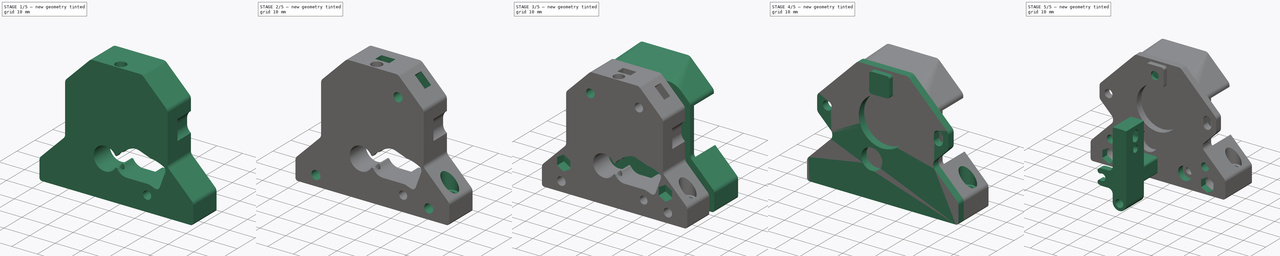
[diagram: build sequence overview — one tinted view per stage of 5, left to right]
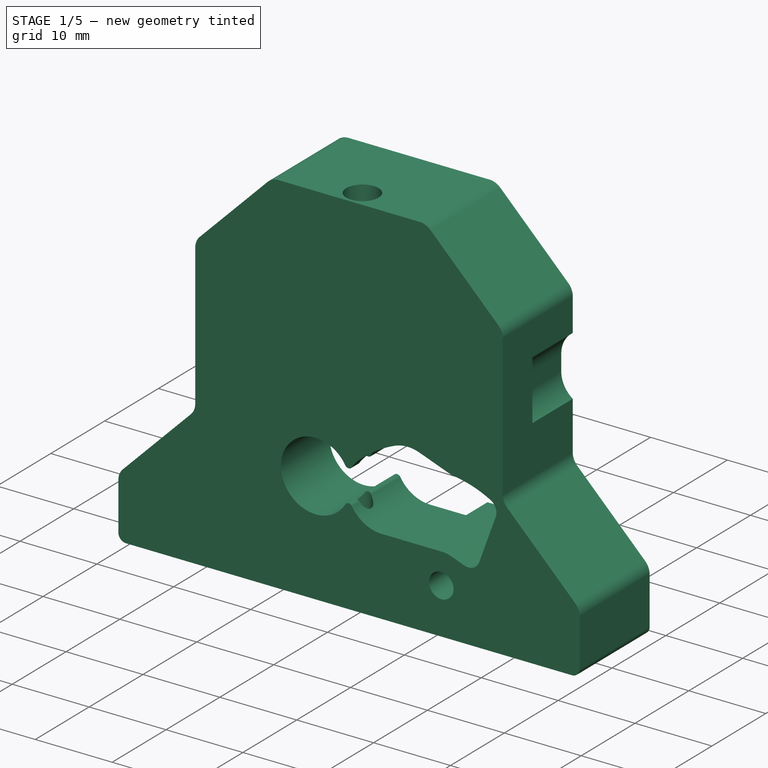
[diagram: stage 1 of 5 — iso view after this stage's code; geometry added in this stage tinted green]
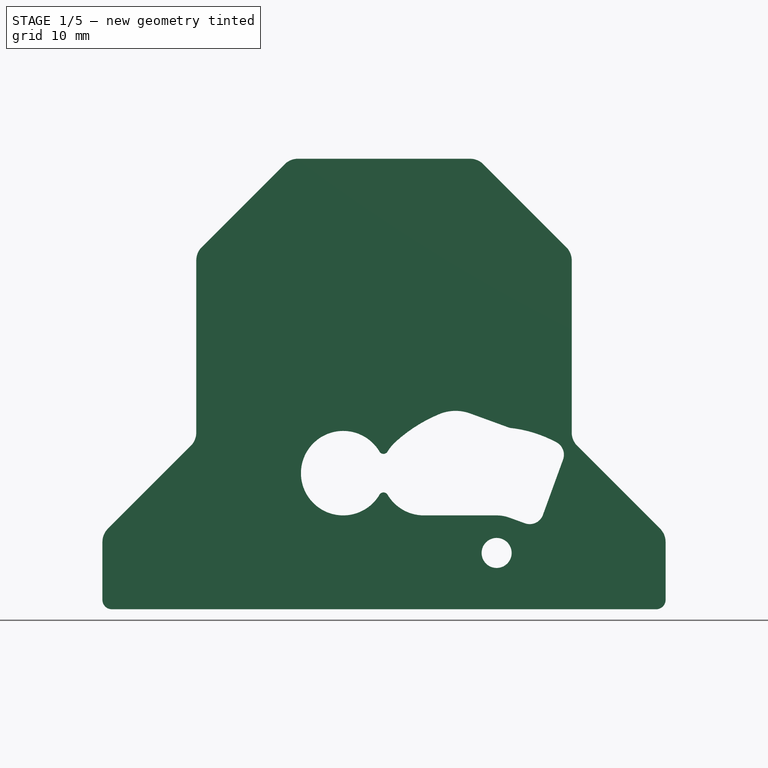
[diagram: stage 1 of 5 — front view after this stage's code; geometry added in this stage tinted green]
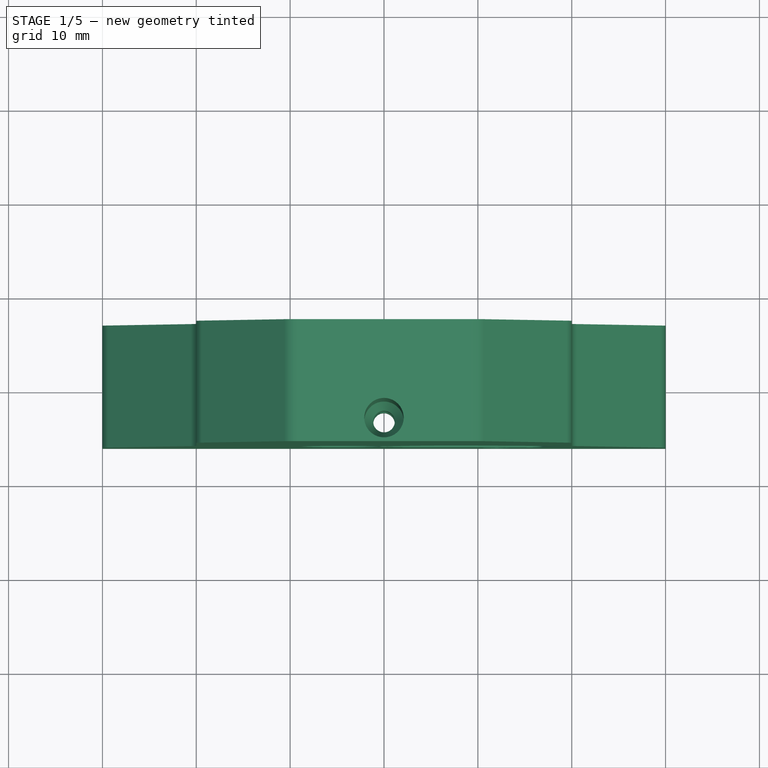
[diagram: stage 1 of 5 — top view after this stage's code; geometry added in this stage tinted green]
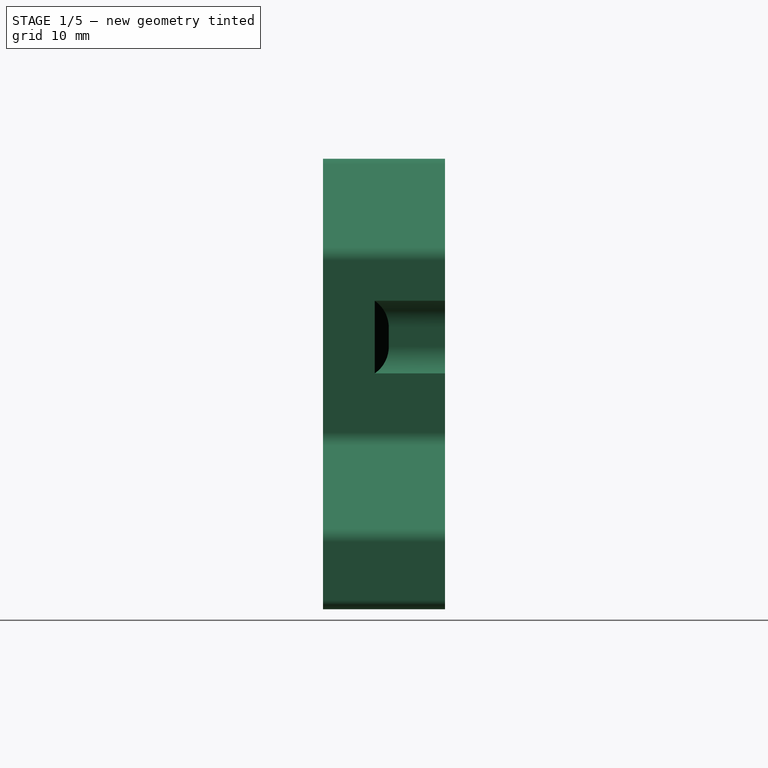
[diagram: stage 1 of 5 — right view after this stage's code; geometry added in this stage tinted green]
FCSTD DOCUMENT  (FreeCAD 1.0R38806 (Git))
Label: simple-bmg-extruder
License: All rights reserved
LicenseURL: http://en.wikipedia.org/wiki/All_rights_reserved
objects: Sketcher::SketchObject×38, PartDesign::Pocket×23, Part::Feature×21, PartDesign::Groove×10, App::Part×8, PartDesign::Pad×5, PartDesign::Mirrored×5, PartDesign::Body×4, PartDesign::Chamfer×2, PartDesign::Fillet×2, PartDesign::SubShapeBinder×2, PartDesign::AdditiveLoft×1
note: 242 computed .brp shape members not serialized (recipe doc carries the construction recipe); baked Part::Feature solids carry a one-line shape summary decoded from their .brp
EXTERNAL_REF file=assembly.FCStd obj=Part

FEATURE [Sketcher::SketchObject] Sketch017
  ArcFitTolerance = 1e-06
  AttachmentOffset = pos=(12,0,6) rot=(0,0,1;0rad)
  AttachmentSupport = -> [XY_Plane163]
  FullyConstrained = true
  MakeInternals = false
  MapMode = 5
  Placement = pos=(12,0,6) rot=(0,0,1;0rad)
  sketch-geometry (7):
    g0: LineSegment StartX=0 StartY=0 StartZ=0 EndX=3 EndY=0 EndZ=0
    g1: LineSegment StartX=3 StartY=0 StartZ=0 EndX=3 EndY=-10 EndZ=0
    g2: LineSegment StartX=3 StartY=-10 StartZ=0 EndX=1.6 EndY=-10 EndZ=0
    g3: LineSegment StartX=1.6 StartY=-10 StartZ=0 EndX=1.6 EndY=-16 EndZ=0
    g4: LineSegment StartX=1.6 StartY=-16 StartZ=0 EndX=0 EndY=-16 EndZ=0
    g5: LineSegment StartX=0 StartY=-16 StartZ=0 EndX=0 EndY=0 EndZ=0
    g6: GeomPoint X=0 Y=-30 Z=0
  constraints (19):
    c: Coincident(g-1,g0)
    c: PointOnObject(g0,g-1)
    c: Coincident(g0,g1)
    c: Vertical(g1)
    c: Coincident(g1,g2)
    c: Horizontal(g2)
    c: Coincident(g2,g3)
    c: Vertical(g3)
    c: Coincident(g3,g4)
    c: PointOnObject(g4,g-2)
    c: Horizontal(g4)
    c: Coincident(g4,g5)
    c: Coincident(g5,g0)
    c: DistanceX(g0,g0) = 3
    c: DistanceX(g4,g4) = 1.6
    c: PointOnObject(g6,g-2)
    c: DistanceY(g6) = -30
    c: DistanceY(g6,g2) = 20
    c: DistanceY(g3) = -16
FEATURE [Sketcher::SketchObject] Sketch018
  ArcFitTolerance = 1e-06
  AttachmentOffset = pos=(0,0,13.5) rot=(0,0,1;0rad)
  AttachmentSupport = -> [XZ_Plane163]
  FullyConstrained = true
  MakeInternals = false
  MapMode = 5
  Placement = pos=(0,-13.5,3e-15) rot=(1,0,0;1.5708rad)
  sketch-geometry (8):
    g0: LineSegment StartX=0 StartY=48 StartZ=0 EndX=2.1 EndY=48 EndZ=0
    g1: LineSegment StartX=2.1 StartY=48 StartZ=0 EndX=2.1 EndY=25.6454 EndZ=0
    g2: LineSegment StartX=2.1 StartY=25.6454 StartZ=0 EndX=1.15 EndY=24 EndZ=0
    g3: LineSegment StartX=1.15 StartY=24 StartZ=0 EndX=1.15 EndY=8 EndZ=0
    g4: LineSegment StartX=1.15 StartY=8 StartZ=0 EndX=2.1 EndY=8 EndZ=0
    g5: LineSegment StartX=2.1 StartY=8 StartZ=0 EndX=2.1 EndY=0 EndZ=0
    g6: LineSegment StartX=2.1 StartY=0 StartZ=0 EndX=0 EndY=0 EndZ=0
    g7: LineSegment StartX=0 StartY=0 StartZ=0 EndX=0 EndY=48 EndZ=0
  constraints (23):
    c: PointOnObject(g0,g-2)
    c: Horizontal(g0)
    c: Coincident(g0,g1)
    c: Vertical(g1)
    c: Coincident(g1,g2)
    c: Coincident(g2,g3)
    c: Vertical(g3)
    c: Coincident(g3,g4)
    c: Coincident(g4,g5)
    c: Vertical(g5)
    c: Coincident(g5,g6)
    c: Coincident(g6,g-1)
    c: Coincident(g6,g7)
    c: Coincident(g7,g0)
    c: Horizontal(g4)
    c: Horizontal(g6)
    c: Angle(g2) = -2.0944
    c: Vertical(g1,g4)
    c: DistanceY(g0) = 48
    c: DistanceX(g6,g6) = 2.1
    c: DistanceX(g3) = 1.15
    c: DistanceY(g5,g5) = 8
    c: DistanceY(g2) = 24
FEATURE [Sketcher::SketchObject] Sketch019
  ArcFitTolerance = 1e-06
  AttachmentSupport = -> [XZ_Plane163]
  FullyConstrained = true
  MakeInternals = false
  MapMode = 5
  Placement = pos=(0,0,0) rot=(1,0,0;1.5708rad)
  sketch-geometry (30):
    g0: LineSegment StartX=-30 StartY=1 StartZ=0 EndX=-30 EndY=7.17157 EndZ=0
    g1: LineSegment StartX=-29.4142 StartY=8.58579 StartZ=0 EndX=-20.5858 EndY=17.4142 EndZ=0
    g2: LineSegment StartX=-20 StartY=18.8284 StartZ=0 EndX=-20 EndY=37.1716 EndZ=0
    g3: LineSegment StartX=-19.4142 StartY=38.5858 StartZ=0 EndX=-10.5858 EndY=47.4142 EndZ=0
    g4: LineSegment StartX=-9.17157 StartY=48 StartZ=0 EndX=9.17157 EndY=48 EndZ=0
    g5: LineSegment StartX=10.5858 StartY=47.4142 StartZ=0 EndX=19.4142 EndY=38.5858 EndZ=0
    g6: LineSegment StartX=20 StartY=37.1716 StartZ=0 EndX=20 EndY=18.8284 EndZ=0
    g7: LineSegment StartX=20.5858 StartY=17.4142 StartZ=0 EndX=29.4142 EndY=8.58579 EndZ=0
    g8: LineSegment StartX=30 StartY=7.17157 StartZ=0 EndX=30 EndY=1 EndZ=0
    g9: LineSegment StartX=29 StartY=0 StartZ=0 EndX=-29 EndY=0 EndZ=0
    g10: ArcOfCircle CenterX=-18 CenterY=37.1716 CenterZ=0 NormalX=0 NormalY=0 NormalZ=1 AngleXU=0 Radius=2 StartAngle=2.35619 EndAngle=3.14159
    g11: GeomPoint [constr] X=-20 Y=38 Z=0
    g12: ArcOfCircle CenterX=-9.17157 CenterY=46 CenterZ=0 NormalX=0 NormalY=0 NormalZ=1 AngleXU=0 Radius=2 StartAngle=1.5708 EndAngle=2.35619
    g13: GeomPoint [constr] X=-10 Y=48 Z=0
    g14: ArcOfCircle CenterX=9.17157 CenterY=46 CenterZ=0 NormalX=0 NormalY=0 NormalZ=1 AngleXU=0 Radius=2 StartAngle=0.785398 EndAngle=1.5708
    g15: GeomPoint [constr] X=10 Y=48 Z=0
    g16: ArcOfCircle CenterX=18 CenterY=37.1716 CenterZ=0 NormalX=0 NormalY=0 NormalZ=1 AngleXU=0 Radius=2 StartAngle=1.6e-15 EndAngle=0.785398
    g17: GeomPoint [constr] X=20 Y=38 Z=0
    g18: ArcOfCircle CenterX=22 CenterY=18.8284 CenterZ=0 NormalX=0 NormalY=0 NormalZ=1 AngleXU=0 Radius=2 StartAngle=3.14159 EndAngle=3.92699
    g19: GeomPoint [constr] X=20 Y=18 Z=0
    g20: ArcOfCircle CenterX=28 CenterY=7.17157 CenterZ=0 NormalX=0 NormalY=0 NormalZ=1 AngleXU=0 Radius=2 StartAngle=0 EndAngle=0.785398
    g21: GeomPoint [constr] X=30 Y=8 Z=0
    g22: ArcOfCircle CenterX=29 CenterY=1 CenterZ=0 NormalX=0 NormalY=0 NormalZ=1 AngleXU=0 Radius=1 StartAngle=4.71239 EndAngle=6.28319
    g23: GeomPoint [constr] X=30 Y=0 Z=0
    g24: ArcOfCircle CenterX=-29 CenterY=1 CenterZ=0 NormalX=0 NormalY=0 NormalZ=1 AngleXU=0 Radius=1 StartAngle=3.14159 EndAngle=4.71239
    g25: GeomPoint [constr] X=-30 Y=0 Z=0
    g26: ArcOfCircle CenterX=-28 CenterY=7.17157 CenterZ=0 NormalX=0 NormalY=0 NormalZ=1 AngleXU=0 Radius=2 StartAngle=2.35619 EndAngle=3.14159
    g27: GeomPoint [constr] X=-30 Y=8 Z=0
    g28: ArcOfCircle CenterX=-22 CenterY=18.8284 CenterZ=0 NormalX=0 NormalY=0 NormalZ=1 AngleXU=0 Radius=2 StartAngle=5.49779 EndAngle=6.28319
    g29: GeomPoint [constr] X=-20 Y=18 Z=0
  constraints (67):
    c: PointOnObject(g25,g-1)
    c: Vertical(g0)
    c: Vertical(g2)
    c: Vertical(g6)
    c: Vertical(g8)
    c: Horizontal(g9)
    c: Symmetric(g27,g21,g-2)
    c: Perpendicular(g7,g1)
    c: Angle(g7) = -0.785398
    c: Parallel(g7,g5)
    c: Symmetric(g15,g13,g-2)
    c: DistanceY(g15) = 48
    c: DistanceX(g29,g19) = 40
    c: Symmetric(g17,g11,g-2)
    c: DistanceY(g23,g21) = 8
    c: DistanceX(g13,g15) = 20
    c: PointOnObject(g11,g2)
    c: PointOnObject(g11,g3)
    c: Tangent(g2,g10) = 1.5708
    c: Tangent(g3,g10) = 1.5708
    c: PointOnObject(g13,g3)
    c: PointOnObject(g13,g4)
    c: Tangent(g3,g12) = 1.5708
    c: Tangent(g4,g12) = 1.5708
    c: PointOnObject(g15,g4)
    c: PointOnObject(g15,g5)
    c: Tangent(g4,g14) = 1.5708
    c: Tangent(g5,g14) = 1.5708
    c: PointOnObject(g17,g5)
    c: PointOnObject(g17,g6)
    c: Tangent(g5,g16) = 1.5708
    c: Tangent(g6,g16) = 1.5708
    c: PointOnObject(g19,g6)
    c: PointOnObject(g19,g7)
    c: Tangent(g6,g18) = -1.5708
    c: Tangent(g7,g18) = -1.5708
    c: PointOnObject(g21,g7)
    c: PointOnObject(g21,g8)
    c: Tangent(g7,g20) = 1.5708
    c: Tangent(g8,g20) = 1.5708
    c: PointOnObject(g23,g8)
    c: PointOnObject(g23,g9)
    c: Tangent(g8,g22) = 1.5708
    c: Tangent(g9,g22) = 1.5708
    c: PointOnObject(g25,g0)
    c: PointOnObject(g25,g9)
    c: Tangent(g0,g24) = 1.5708
    c: Tangent(g9,g24) = 1.5708
    c: PointOnObject(g27,g0)
    c: PointOnObject(g27,g1)
    c: Tangent(g0,g26) = 1.5708
    c: Tangent(g1,g26) = 1.5708
    c: PointOnObject(g29,g1)
    c: PointOnObject(g29,g2)
    c: Tangent(g1,g28) = -1.5708
    c: Tangent(g2,g28) = -1.5708
    c: Equal(g28,g26)
    c: Radius(g28) = 2
    c: Equal(g20,g18)
    c: Equal(g18,g16)
    c: Equal(g16,g14)
    c: Equal(g14,g12)
    c: Equal(g12,g10)
    c: DistanceX(g25,g23) = 60
    c: Equal(g22,g24)
    c: Radius(g22) = 1
    c: Equal(g20,g26)
FEATURE [PartDesign::Pad] Pad003
  Direction = (0,-1,2e-16)
  Length = 16
  Length2 = -3
  Placement = pos=(0,0,0) rot=(1,0,0;1.5708rad)
  Profile = -> Sketch019
  ReferenceAxis = -> Sketch019 [N_Axis]
  Suppressed = false
  Type = 4
FEATURE [Sketcher::SketchObject] Sketch020
  ArcFitTolerance = 1e-06
  AttachmentOffset = pos=(0,0,3) rot=(0,0,1;0rad)
  AttachmentSupport = -> [XZ_Plane163]
  FullyConstrained = true
  MakeInternals = false
  MapMode = 5
  Placement = pos=(0,-3,7e-16) rot=(1,0,0;1.5708rad)
  sketch-geometry (6):
    g0: Circle CenterX=-22 CenterY=29 CenterZ=0 NormalX=0 NormalY=0 NormalZ=1 AngleXU=0 Radius=3.5
    g1: ArcOfCircle CenterX=22 CenterY=30 CenterZ=0 NormalX=0 NormalY=0 NormalZ=1 AngleXU=0 Radius=3.5 StartAngle=7e-16 EndAngle=3.14159
    g2: ArcOfCircle CenterX=22 CenterY=28 CenterZ=0 NormalX=0 NormalY=0 NormalZ=1 AngleXU=0 Radius=3.5 StartAngle=3.14159 EndAngle=6.28319
    g3: LineSegment StartX=25.5 StartY=30 StartZ=0 EndX=25.5 EndY=28 EndZ=0
    g4: LineSegment StartX=18.5 StartY=30 StartZ=0 EndX=18.5 EndY=28 EndZ=0
    g5: GeomPoint X=22 Y=29 Z=0
  constraints (13):
    c: Tangent(g1,g3) = 1.5708
    c: Tangent(g1,g4) = -1.5708
    c: Tangent(g2,g3) = 1.5708
    c: Tangent(g2,g4) = -1.5708
    c: Equal(g1,g2)
    c: Vertical(g3)
    c: Equal(g0,g1)
    c: Diameter(g0) = 7
    c: Symmetric(g2,g1,g5)
    c: Symmetric(g5,g0,g-2)
    c: DistanceY(g3,g3) = 2
    c: DistanceX(g0,g5) = 44
    c: DistanceY(g0) = 29
FEATURE [PartDesign::Pocket] Pocket
  BaseFeature = -> Pad003
  Direction = (0,1,-2e-16)
  Length = 6
  Length2 = 5
  Placement = pos=(0,0,0) rot=(1,0,0;1.5708rad)
  Profile = -> Sketch020
  ReferenceAxis = -> Sketch020 [N_Axis]
  Reversed = true
  Suppressed = false
  Type = 0
FEATURE [PartDesign::Chamfer] Chamfer
  Angle = 45
  Base = -> Pocket [Edge74,Edge58]
  BaseFeature = -> Pocket
  ChamferType = 0
  FlipDirection = false
  Placement = pos=(0,0,0) rot=(1,0,0;1.5708rad)
  Size = 1.49
  Size2 = 1
  SupportTransform = false
  Suppressed = false
  UseAllEdges = false
FEATURE [PartDesign::Groove] Groove002
  Angle = 360
  Angle2 = 60
  Axis = (0,2e-16,1)
  Base = (0,-13.5,3e-15)
  BaseFeature = -> Chamfer
  Placement = pos=(0,0,0) rot=(1,0,0;1.5708rad)
  Profile = -> Sketch018
  ReferenceAxis = -> Sketch018 [V_Axis]
  Suppressed = false
  Type = 0
FEATURE [PartDesign::Pocket] Pocket010
  BaseFeature = -> Groove002
  Direction = (0,1,-2e-16)
  Length = 5
  Length2 = 5
  Midplane = true
  Placement = pos=(0,0,0) rot=(1,0,0;1.5708rad)
  Profile = -> Sketch007
  ReferenceAxis = -> Sketch007 [N_Axis]
  Suppressed = false
  Type = 1
FEATURE [PartDesign::Body] Body002  label="lever"
  AllowCompound = false
  Group = -> [Sketch004,Pad001,Sketch005,Groove,Sketch006,Pocket001,Sketch008,Pocket003,Fillet]
  Origin = -> Origin162
  Placement = pos=(12,0,6) rot=(0,0,1;0rad)
  Tip = -> Fillet
FEATURE [PartDesign::Groove] Groove003
  Angle = 360
  Angle2 = 60
  Axis = (0,1,0)
  Base = (12,0,6)
  BaseFeature = -> Pocket010
  Placement = pos=(0,0,0) rot=(1,0,0;1.5708rad)
  Profile = -> Sketch017
  ReferenceAxis = -> Sketch017 [V_Axis]
  Suppressed = false
  Type = 0
FEATURE [Sketcher::SketchObject] Sketch021
  ArcFitTolerance = 1e-06
  AttachmentOffset = pos=(-4.35,0,14.5) rot=(0,0,1;0rad)
  AttachmentSupport = -> [XY_Plane163]
  FullyConstrained = true
  MakeInternals = false
  MapMode = 5
  Placement = pos=(-4.35,0,14.5) rot=(0,0,1;0rad)
  sketch-geometry (6):
    g0: LineSegment StartX=0 StartY=-3 StartZ=0 EndX=14 EndY=-3 EndZ=0
    g1: LineSegment StartX=14 StartY=-3 StartZ=0 EndX=14 EndY=-7 EndZ=0
    g2: LineSegment StartX=14 StartY=-7 StartZ=0 EndX=4.5 EndY=-7 EndZ=0
    g3: LineSegment StartX=4.5 StartY=-7 StartZ=0 EndX=4.5 EndY=-16 EndZ=0
    g4: LineSegment StartX=4.5 StartY=-16 StartZ=0 EndX=0 EndY=-16 EndZ=0
    g5: LineSegment StartX=0 StartY=-16 StartZ=0 EndX=0 EndY=-3 EndZ=0
  constraints (18):
    c: PointOnObject(g0,g-2)
    c: Horizontal(g0)
    c: Coincident(g0,g1)
    c: Vertical(g1)
    c: Coincident(g1,g2)
    c: Horizontal(g2)
    c: Coincident(g2,g3)
    c: Vertical(g3)
    c: Coincident(g3,g4)
    c: PointOnObject(g4,g-2)
    c: Horizontal(g4)
    c: Coincident(g4,g5)
    c: Coincident(g5,g0)
    c: DistanceY(g0) = -3
    c: DistanceY(g1,g1) = 4
    c: DistanceX(g0,g0) = 14
    c: DistanceY(g3) = -16
    c: DistanceX(g4,g4) = 4.5
FEATURE [PartDesign::Groove] Groove004
  Angle = 360
  Angle2 = 60
  Axis = (0,1,0)
  Base = (-4.35,0,14.5)
  BaseFeature = -> Groove003
  Placement = pos=(0,0,0) rot=(1,0,0;1.5708rad)
  Profile = -> Sketch021
  ReferenceAxis = -> Sketch021 [V_Axis]
  Suppressed = false
  Type = 0
FEATURE [PartDesign::Fillet] Fillet002
  Base = -> Groove004 [Edge141,Edge138,Edge143,Edge145]
  BaseFeature = -> Groove004
  Placement = pos=(0,0,0) rot=(1,0,0;1.5708rad)
  Radius = 0.5
  SupportTransform = false
  Suppressed = false
  UseAllEdges = false
FEATURE [Sketcher::SketchObject] Sketch022
  ArcFitTolerance = 1e-06
  AttachmentSupport = -> [XZ_Plane163]
  FullyConstrained = true
  MakeInternals = false
  MapMode = 5
  Placement = pos=(0,0,0) rot=(1,0,0;1.5708rad)
  sketch-geometry (1):
    g0: Circle CenterX=0 CenterY=29 CenterZ=0 NormalX=0 NormalY=0 NormalZ=1 AngleXU=0 Radius=5
  constraints (3):
    c: PointOnObject(g0,g-2)
    c: Diameter(g0) = 10
    c: DistanceY(g0) = 29
FEATURE [PartDesign::Pocket] Pocket011
  BaseFeature = -> Fillet002
  Direction = (0,1,-2e-16)
  Length = 7
  Length2 = 5
  Placement = pos=(0,0,0) rot=(1,0,0;1.5708rad)
  Profile = -> Sketch022
  ReferenceAxis = -> Sketch022 [N_Axis]
  Refine = true
  Reversed = true
  Suppressed = false
  Type = 0
FEATURE [Sketcher::SketchObject] Sketch023
  ArcFitTolerance = 1e-06
  AttachmentSupport = -> [XZ_Plane163]
  FullyConstrained = true
  MakeInternals = false
  MapMode = 5
  Placement = pos=(0,0,0) rot=(1,0,0;1.5708rad)
  sketch-geometry (14):
    g0: LineSegment StartX=-4.2 StartY=46.2 StartZ=0 EndX=-4.2 EndY=39.8 EndZ=0
    g1: LineSegment StartX=-3.2 StartY=38.8 StartZ=0 EndX=3.2 EndY=38.8 EndZ=0
    g2: LineSegment StartX=4.2 StartY=39.8 StartZ=0 EndX=4.2 EndY=46.2 EndZ=0
    g3: LineSegment StartX=3.2 StartY=47.2 StartZ=0 EndX=-3.2 EndY=47.2 EndZ=0
    g4: Circle [constr] CenterX=0 CenterY=43 CenterZ=0 NormalX=0 NormalY=0 NormalZ=1 AngleXU=0 Radius=1.75
    g5: GeomPoint X=0 Y=48 Z=0
    g6: ArcOfCircle CenterX=3.2 CenterY=46.2 CenterZ=0 NormalX=0 NormalY=0 NormalZ=1 AngleXU=0 Radius=1 StartAngle=2.1e-15 EndAngle=1.5708
    g7: GeomPoint [constr] X=4.2 Y=47.2 Z=0
    g8: ArcOfCircle CenterX=3.2 CenterY=39.8 CenterZ=0 NormalX=0 NormalY=0 NormalZ=1 AngleXU=0 Radius=1 StartAngle=4.71239 EndAngle=6.28319
    g9: GeomPoint [constr] X=4.2 Y=38.8 Z=0
    g10: ArcOfCircle CenterX=-3.2 CenterY=39.8 CenterZ=0 NormalX=0 NormalY=0 NormalZ=1 AngleXU=0 Radius=1 StartAngle=3.14159 EndAngle=4.71239
    g11: GeomPoint [constr] X=-4.2 Y=38.8 Z=0
    g12: ArcOfCircle CenterX=-3.2 CenterY=46.2 CenterZ=0 NormalX=0 NormalY=0 NormalZ=1 AngleXU=0 Radius=1 StartAngle=1.5708 EndAngle=3.14159
    g13: GeomPoint [constr] X=-4.2 Y=47.2 Z=0
  constraints (32):
    c: Vertical(g0)
    c: Vertical(g2)
    c: Horizontal(g1)
    c: PointOnObject(g4,g-2)
    c: PointOnObject(g5,g-2)
    c: DistanceY(g5) = 48
    c: DistanceY(g4,g5) = 5
    c: Diameter(g4) = 3.5
    c: Symmetric(g7,g11,g4)
    c: Horizontal(g3)
    c: DistanceY(g9,g7) = 8.4
    c: DistanceX(g11,g9) = 8.4
    c: PointOnObject(g7,g2)
    c: PointOnObject(g7,g3)
    c: Tangent(g2,g6) = -1.5708
    c: Tangent(g3,g6) = -1.5708
    c: PointOnObject(g9,g1)
    c: PointOnObject(g9,g2)
    c: Tangent(g1,g8) = -1.5708
    c: Tangent(g2,g8) = -1.5708
    c: PointOnObject(g11,g0)
    c: PointOnObject(g11,g1)
    c: Tangent(g0,g10) = -1.5708
    c: Tangent(g1,g10) = -1.5708
    c: PointOnObject(g13,g0)
    c: PointOnObject(g13,g3)
    c: Tangent(g0,g12) = -1.5708
    c: Tangent(g3,g12) = -1.5708
    c: Equal(g12,g6)
    c: Equal(g6,g8)
    c: Equal(g8,g10)
    c: Radius(g12) = 1
FEATURE [PartDesign::Pocket] Pocket012
  BaseFeature = -> Pocket011
  Direction = (0,1,-2e-16)
  Length = 5.2
  Length2 = 5
  Placement = pos=(0,0,0) rot=(1,0,0;1.5708rad)
  Profile = -> Sketch023
  ReferenceAxis = -> Sketch023 [N_Axis]
  Reversed = true
  Suppressed = false
  Type = 0
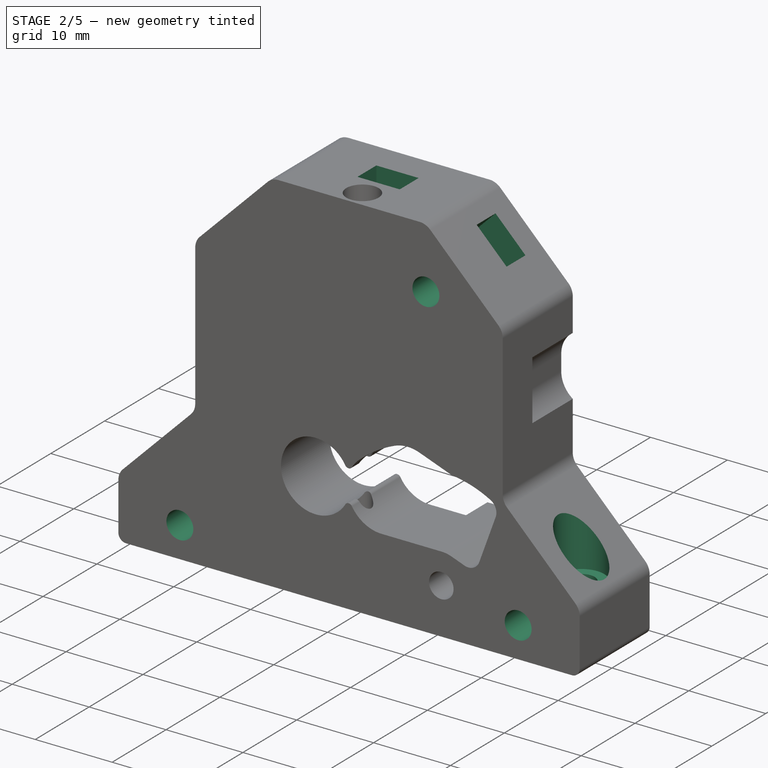
[diagram: stage 2 of 5 — iso view after this stage's code; geometry added in this stage tinted green]
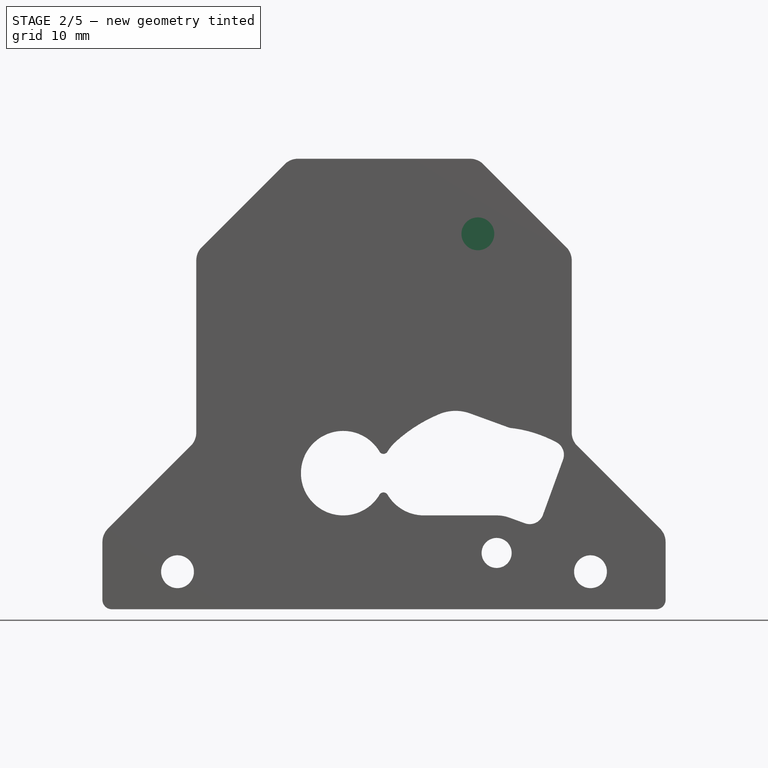
[diagram: stage 2 of 5 — front view after this stage's code; geometry added in this stage tinted green]
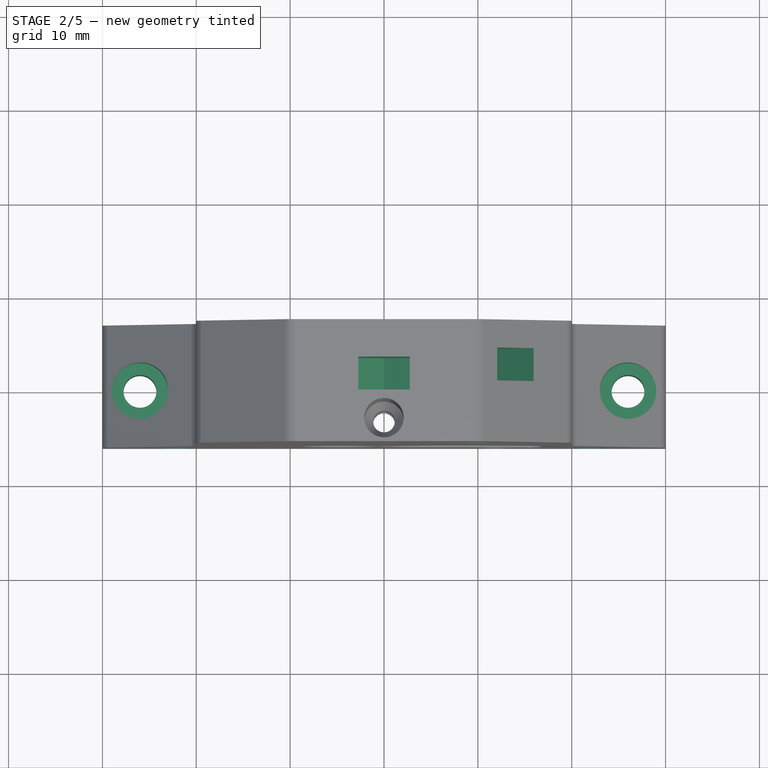
[diagram: stage 2 of 5 — top view after this stage's code; geometry added in this stage tinted green]
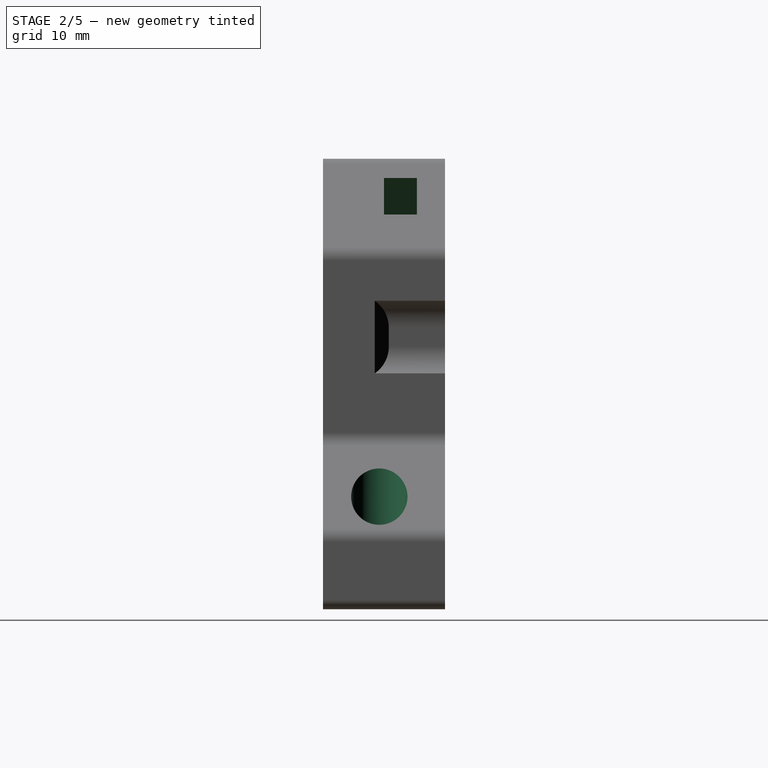
[diagram: stage 2 of 5 — right view after this stage's code; geometry added in this stage tinted green]
FEATURE [Sketcher::SketchObject] Sketch028
  ArcFitTolerance = 1e-06
  AttachmentOffset = pos=(0,0,7) rot=(0,0,1;0rad)
  AttachmentSupport = -> [XZ_Plane163]
  FullyConstrained = true
  MakeInternals = false
  MapMode = 5
  Placement = pos=(0,-7,1.6e-15) rot=(1,0,0;1.5708rad)
  sketch-geometry (10):
    g0: LineSegment StartX=2.75 StartY=40.4123 StartZ=0 EndX=2.75 EndY=43.5877 EndZ=0
    g1: LineSegment [constr] StartX=2.75 StartY=43.5877 StartZ=0 EndX=4e-16 EndY=45.1754 EndZ=0
    g2: LineSegment [constr] StartX=4e-16 StartY=45.1754 StartZ=0 EndX=-2.75 EndY=43.5877 EndZ=0
    g3: LineSegment StartX=-2.75 StartY=43.5877 StartZ=0 EndX=-2.75 EndY=40.4123 EndZ=0
    g4: LineSegment StartX=-2.75 StartY=40.4123 StartZ=0 EndX=-9e-16 EndY=38.8246 EndZ=0
    g5: LineSegment StartX=-9e-16 StartY=38.8246 StartZ=0 EndX=2.75 EndY=40.4123 EndZ=0
    g6: Circle [constr] CenterX=0 CenterY=42 CenterZ=0 NormalX=0 NormalY=0 NormalZ=1 AngleXU=0 Radius=3.17543
    g7: LineSegment StartX=-2.75 StartY=43.5877 StartZ=0 EndX=-2.75 EndY=48 EndZ=0
    g8: LineSegment StartX=-2.75 StartY=48 StartZ=0 EndX=2.75 EndY=48 EndZ=0
    g9: LineSegment StartX=2.75 StartY=48 StartZ=0 EndX=2.75 EndY=43.5877 EndZ=0
  constraints (25):
    c: Coincident(g0,g1)
    c: Coincident(g1,g2)
    c: Coincident(g2,g3)
    c: Coincident(g3,g4)
    c: Coincident(g4,g5)
    c: Coincident(g5,g0)
    c: Equal(g0, g1-g5) x5
    c: PointOnObject(g0,g6)
    c: PointOnObject(g1,g6)
    c: PointOnObject(g2,g6)
    c: PointOnObject(g3,g6)
    c: PointOnObject(g4,g6)
    c: PointOnObject(g5,g6)
    c: PointOnObject(g6,g-2)
    c: Vertical(g0)
    c: DistanceX(g2,g0) = 5.5
    c: Coincident(g2,g7)
    c: Vertical(g7)
    c: Coincident(g7,g8)
    c: Horizontal(g8)
    c: Coincident(g8,g9)
    c: Coincident(g9,g0)
    c: Vertical(g9)
    c: DistanceY(g8) = 48
    c: DistanceY(g6,g8) = 6
FEATURE [PartDesign::Pocket] Pocket016
  BaseFeature = -> Pocket012
  Direction = (0,1,-2e-16)
  Length = 3.5
  Length2 = 5
  Placement = pos=(0,0,0) rot=(1,0,0;1.5708rad)
  Profile = -> Sketch028
  ReferenceAxis = -> Sketch028 [N_Axis]
  Reversed = true
  Suppressed = false
  Type = 0
FEATURE [Sketcher::SketchObject] Sketch029
  ArcFitTolerance = 1e-06
  AttachmentOffset = pos=(0,0,6.7) rot=(0,0,1;0rad)
  AttachmentSupport = -> [XZ_Plane163]
  FullyConstrained = true
  MakeInternals = false
  MapMode = 5
  Placement = pos=(0,-6.7,1.5e-15) rot=(1,0,0;1.5708rad)
  sketch-geometry (1):
    g0: Circle CenterX=0 CenterY=43 CenterZ=0 NormalX=0 NormalY=0 NormalZ=1 AngleXU=0 Radius=1.75
  constraints (3):
    c: PointOnObject(g0,g-2)
    c: DistanceY(g0) = 43
    c: Diameter(g0) = 3.5
FEATURE [PartDesign::Pocket] Pocket017
  BaseFeature = -> Pocket016
  Direction = (0,1,-2e-16)
  Length = 5
  Length2 = 5
  Placement = pos=(0,0,0) rot=(1,0,0;1.5708rad)
  Profile = -> Sketch029
  ReferenceAxis = -> Sketch029 [N_Axis]
  Suppressed = false
  Type = 1
FEATURE [Sketcher::SketchObject] Sketch030
  ArcFitTolerance = 1e-06
  AttachmentOffset = pos=(0,0,11.5) rot=(0,0,1;0rad)
  AttachmentSupport = -> [XZ_Plane163]
  FullyConstrained = true
  MakeInternals = false
  MapMode = 5
  Placement = pos=(0,-11.5,2.6e-15) rot=(1,0,0;1.5708rad)
  sketch-geometry (1):
    g0: Circle CenterX=0 CenterY=43 CenterZ=0 NormalX=0 NormalY=0 NormalZ=1 AngleXU=0 Radius=1.75
  constraints (3):
    c: PointOnObject(g0,g-2)
    c: DistanceY(g0) = 43
    c: Diameter(g0) = 3.5
FEATURE [PartDesign::Pocket] Pocket018
  BaseFeature = -> Pocket017
  Direction = (0,1,-2e-16)
  Length = 2
  Length2 = 5
  Placement = pos=(0,0,0) rot=(1,0,0;1.5708rad)
  Profile = -> Sketch030
  ReferenceAxis = -> Sketch030 [N_Axis]
  Suppressed = false
  Type = 0
FEATURE [Sketcher::SketchObject] Sketch035
  ArcFitTolerance = 1e-06
  AttachmentSupport = -> [XZ_Plane163]
  FullyConstrained = true
  MakeInternals = false
  MapMode = 5
  Placement = pos=(0,0,0) rot=(1,0,0;1.5708rad)
  sketch-geometry (2):
    g0: Circle CenterX=-22 CenterY=4 CenterZ=0 NormalX=0 NormalY=0 NormalZ=1 AngleXU=0 Radius=1.75
    g1: Circle CenterX=22 CenterY=4 CenterZ=0 NormalX=0 NormalY=0 NormalZ=1 AngleXU=0 Radius=1.75
  constraints (5):
    c: Symmetric(g1,g0,g-2)
    c: Equal(g1,g0)
    c: Diameter(g0) = 3.5
    c: DistanceY(g0) = 4
    c: DistanceX(g0) = -22
FEATURE [PartDesign::Pocket] Pocket023
  BaseFeature = -> Pocket018
  Direction = (0,1,-2e-16)
  Length = 5
  Length2 = 5
  Midplane = true
  Placement = pos=(0,0,0) rot=(1,0,0;1.5708rad)
  Profile = -> Sketch035
  ReferenceAxis = -> Sketch035 [N_Axis]
  Suppressed = false
  Type = 1
FEATURE [Sketcher::SketchObject] Sketch036
  ArcFitTolerance = 1e-06
  AttachmentOffset = pos=(0,0,8) rot=(0,0,1;0rad)
  AttachmentSupport = -> [XZ_Plane163]
  FullyConstrained = true
  MakeInternals = false
  MapMode = 5
  Placement = pos=(0,-8,1.8e-15) rot=(1,0,0;1.5708rad)
  sketch-geometry (14):
    g0: LineSegment StartX=-19.25 StartY=2.41229 StartZ=0 EndX=-19.25 EndY=5.58771 EndZ=0
    g1: LineSegment StartX=-19.25 StartY=5.58771 StartZ=0 EndX=-22 EndY=7.17543 EndZ=0
    g2: LineSegment StartX=-22 StartY=7.17543 StartZ=0 EndX=-24.75 EndY=5.58771 EndZ=0
    g3: LineSegment StartX=-24.75 StartY=5.58771 StartZ=0 EndX=-24.75 EndY=2.41229 EndZ=0
    g4: LineSegment StartX=-24.75 StartY=2.41229 StartZ=0 EndX=-22 EndY=0.824574 EndZ=0
    g5: LineSegment StartX=-22 StartY=0.824574 StartZ=0 EndX=-19.25 EndY=2.41229 EndZ=0
    g6: Circle [constr] CenterX=-22 CenterY=4 CenterZ=0 NormalX=0 NormalY=0 NormalZ=1 AngleXU=0 Radius=3.17543
    g7: LineSegment StartX=24.75 StartY=2.41229 StartZ=0 EndX=24.75 EndY=5.58771 EndZ=0
    g8: LineSegment StartX=24.75 StartY=5.58771 StartZ=0 EndX=22 EndY=7.17543 EndZ=0
    g9: LineSegment StartX=22 StartY=7.17543 StartZ=0 EndX=19.25 EndY=5.58771 EndZ=0
    g10: LineSegment StartX=19.25 StartY=5.58771 StartZ=0 EndX=19.25 EndY=2.41229 EndZ=0
    g11: LineSegment StartX=19.25 StartY=2.41229 StartZ=0 EndX=22 EndY=0.824574 EndZ=0
    g12: LineSegment StartX=22 StartY=0.824574 StartZ=0 EndX=24.75 EndY=2.41229 EndZ=0
    g13: Circle [constr] CenterX=22 CenterY=4 CenterZ=0 NormalX=0 NormalY=0 NormalZ=1 AngleXU=0 Radius=3.17543
  constraints (33):
    c: Coincident(g0,g1)
    c: Coincident(g1,g2)
    c: Coincident(g2,g3)
    c: Coincident(g3,g4)
    c: Coincident(g4,g5)
    c: Coincident(g5,g0)
    c: Equal(g0, g1-g5) x5
    c: PointOnObject(g0,g6)
    c: PointOnObject(g1,g6)
    c: PointOnObject(g2,g6)
    c: PointOnObject(g3,g6)
    c: PointOnObject(g4,g6)
    c: PointOnObject(g5,g6)
    c: Coincident(g7,g8)
    c: Coincident(g8,g9)
    c: Coincident(g9,g10)
    c: Coincident(g10,g11)
    c: Coincident(g11,g12)
    c: Coincident(g12,g7)
    c: Equal(g7, g8-g12) x5
    c: PointOnObject(g7,g13)
    c: PointOnObject(g8,g13)
    c: PointOnObject(g9,g13)
    c: PointOnObject(g10,g13)
    c: PointOnObject(g11,g13)
    c: PointOnObject(g12,g13)
    c: Symmetric(g13,g6,g-2)
    c: Equal(g6,g13)
    c: Vertical(g10)
    c: Vertical(g0)
    c: DistanceX(g2,g0) = 5.5
    c: DistanceX(g13) = 22
    c: DistanceY(g13) = 4
FEATURE [PartDesign::Pocket] Pocket024
  BaseFeature = -> Pocket023
  Direction = (0,1,-2e-16)
  Length = 5
  Length2 = 5
  Placement = pos=(0,0,0) rot=(1,0,0;1.5708rad)
  Profile = -> Sketch036
  ReferenceAxis = -> Sketch036 [N_Axis]
  Suppressed = false
  Type = 1
FEATURE [Sketcher::SketchObject] Sketch037
  ArcFitTolerance = 1e-06
  AttachmentOffset = pos=(26,0,10) rot=(0,0,1;0rad)
  AttachmentSupport = -> [XZ_Plane163]
  FullyConstrained = true
  MakeInternals = false
  MapMode = 5
  Placement = pos=(26,-10,2.2e-15) rot=(1,0,0;1.5708rad)
  sketch-geometry (6):
    g0: LineSegment StartX=0 StartY=0 StartZ=0 EndX=1.75 EndY=0 EndZ=0
    g1: LineSegment StartX=1.75 StartY=0 StartZ=0 EndX=1.75 EndY=8 EndZ=0
    g2: LineSegment StartX=1.75 StartY=8 StartZ=0 EndX=3 EndY=8 EndZ=0
    g3: LineSegment StartX=3 StartY=8 StartZ=0 EndX=3 EndY=20 EndZ=0
    g4: LineSegment StartX=3 StartY=20 StartZ=0 EndX=0 EndY=20 EndZ=0
    g5: LineSegment StartX=0 StartY=20 StartZ=0 EndX=0 EndY=0 EndZ=0
  constraints (17):
    c: PointOnObject(g0,g-1)
    c: Coincident(g0,g1)
    c: Vertical(g1)
    c: Coincident(g1,g2)
    c: Horizontal(g2)
    c: Coincident(g2,g3)
    c: Vertical(g3)
    c: Coincident(g3,g4)
    c: Horizontal(g4)
    c: Coincident(g4,g5)
    c: Coincident(g5,g0)
    c: Vertical(g5)
    c: DistanceX(g0,g0) = 1.75
    c: DistanceY(g5,g5) = 20
    c: DistanceX(g4,g4) = 3
    c: DistanceY(g1,g1) = 8
    c: Coincident(g0,g-1)
FEATURE [PartDesign::Groove] Groove006
  Angle = 360
  Angle2 = 60
  Axis = (0,2e-16,1)
  Base = (26,-10,2.2e-15)
  BaseFeature = -> Pocket024
  Placement = pos=(0,0,0) rot=(1,0,0;1.5708rad)
  Profile = -> Sketch037
  ReferenceAxis = -> Sketch037 [V_Axis]
  Suppressed = false
  Type = 0
FEATURE [PartDesign::Mirrored] Mirrored001
  BaseFeature = -> Groove006
  MirrorPlane = -> YZ_Plane163
  Originals = -> [Groove006]
  Placement = pos=(0,0,0) rot=(1,0,0;1.5708rad)
  Suppressed = false
  TransformMode = 0
FEATURE [PartDesign::Body] Body001  label="front"
  AllowCompound = false
  Group = -> [Sketch001,Sketch002,AdditiveLoft,Sketch011,Sketch012,Pocket006,Sketch013,Pad002,Groove001,Sketch014,Pocket007,Sketch015,Pocket008,Sketch016,Pocket009,Chamfer001,Sketch034,Groove005,Mirrored,Binder,Groove007,Mirrored002,Sketch038,Groove008,Mirrored003]
  Origin = -> Origin161
  Placement = pos=(0,-30,0) rot=(0,0,1;0rad)
  Tip = -> Mirrored003
FEATURE [Sketcher::SketchObject] Sketch039
  ArcFitTolerance = 1e-06
  AttachmentOffset = pos=(0,0,6) rot=(0,0,1;0rad)
  AttachmentSupport = -> [XZ_Plane163]
  FullyConstrained = true
  MakeInternals = false
  MapMode = 5
  Placement = pos=(0,-6,1.3e-15) rot=(1,0,0;1.5708rad)
  sketch-geometry (11):
    g0: LineSegment [constr] StartX=13.0672 StartY=39.1781 StartZ=0 EndX=12.2454 EndY=42.2454 EndZ=0
    g1: LineSegment [constr] StartX=12.2454 StartY=42.2454 StartZ=0 EndX=9.17814 EndY=43.0672 EndZ=0
    g2: LineSegment StartX=9.17814 StartY=43.0672 StartZ=0 EndX=6.93277 EndY=40.8219 EndZ=0
    g3: LineSegment StartX=6.93277 StartY=40.8219 StartZ=0 EndX=7.75463 EndY=37.7546 EndZ=0
    g4: LineSegment StartX=7.75463 StartY=37.7546 StartZ=0 EndX=10.8219 EndY=36.9328 EndZ=0
    g5: LineSegment StartX=10.8219 StartY=36.9328 StartZ=0 EndX=13.0672 EndY=39.1781 EndZ=0
    g6: Circle [constr] CenterX=10 CenterY=40 CenterZ=0 NormalX=0 NormalY=0 NormalZ=1 AngleXU=0 Radius=3.17543
    g7: LineSegment [constr] StartX=10 StartY=48 StartZ=0 EndX=20 EndY=38 EndZ=0
    g8: LineSegment StartX=13.0672 StartY=39.1781 StartZ=0 EndX=15.9445 EndY=42.0555 EndZ=0
    g9: LineSegment StartX=15.9445 StartY=42.0555 StartZ=0 EndX=12.0555 EndY=45.9445 EndZ=0
    g10: LineSegment StartX=12.0555 StartY=45.9445 StartZ=0 EndX=9.17814 EndY=43.0672 EndZ=0
  constraints (29):
    c: Coincident(g0,g1)
    c: Coincident(g1,g2)
    c: Coincident(g2,g3)
    c: Coincident(g3,g4)
    c: Coincident(g4,g5)
    c: Coincident(g5,g0)
    c: Equal(g0, g1-g5) x5
    c: PointOnObject(g0,g6)
    c: PointOnObject(g1,g6)
    c: PointOnObject(g2,g6)
    c: PointOnObject(g3,g6)
    c: PointOnObject(g4,g6)
    c: PointOnObject(g5,g6)
    c: Angle(g2) = -2.35619
    c: Coincident(g8,g0)
    c: PointOnObject(g8,g7)
    c: Coincident(g9,g8)
    c: PointOnObject(g9,g7)
    c: Coincident(g10,g9)
    c: Coincident(g10,g1)
    c: DistanceX(g7) = 10
    c: DistanceY(g7) = 48
    c: DistanceX(g7) = 20
    c: Perpendicular(g2,g7)
    c: Parallel(g8,g5)
    c: Parallel(g10,g2)
    c: Distance(g9) = 5.5
    c: DistanceX(g6) = 10
    c: DistanceY(g6) = 40
FEATURE [PartDesign::Pocket] Pocket026
  BaseFeature = -> Mirrored001
  Direction = (0,1,-2e-16)
  Length = 3.5
  Length2 = 5
  Placement = pos=(0,0,0) rot=(1,0,0;1.5708rad)
  Profile = -> Sketch039
  ReferenceAxis = -> Sketch039 [N_Axis]
  Reversed = true
  Suppressed = false
  Type = 0
FEATURE [Sketcher::SketchObject] Sketch040
  ArcFitTolerance = 1e-06
  AttachmentOffset = pos=(10,0,40) rot=(0,0,1;0rad)
  AttachmentSupport = -> [XY_Plane163]
  FullyConstrained = true
  MakeInternals = false
  MapMode = 5
  Placement = pos=(10,0,40) rot=(0,0,1;0rad)
  sketch-geometry (9):
    g0: LineSegment StartX=0 StartY=0 StartZ=0 EndX=0 EndY=-6 EndZ=0
    g1: LineSegment StartX=0 StartY=-6 StartZ=0 EndX=1.75 EndY=-6 EndZ=0
    g2: LineSegment StartX=1.75 StartY=-6 StartZ=0 EndX=1.75 EndY=0 EndZ=0
    g3: LineSegment StartX=1.75 StartY=0 StartZ=0 EndX=0 EndY=0 EndZ=0
    g4: LineSegment StartX=0 StartY=-9.8 StartZ=0 EndX=0 EndY=-16 EndZ=0
    g5: LineSegment StartX=0 StartY=-16 StartZ=0 EndX=1.75 EndY=-16 EndZ=0
    g6: LineSegment StartX=1.75 StartY=-16 StartZ=0 EndX=1.75 EndY=-9.8 EndZ=0
    g7: LineSegment StartX=1.75 StartY=-9.8 StartZ=0 EndX=0 EndY=-9.8 EndZ=0
    g8: GeomPoint X=0 Y=-9.5 Z=0
  constraints (25):
    c: Coincident(g0,g1)
    c: Coincident(g1,g2)
    c: Coincident(g2,g3)
    c: Coincident(g3,g0)
    c: Vertical(g0)
    c: Vertical(g2)
    c: Horizontal(g1)
    c: Horizontal(g3)
    c: Coincident(g0,g-1)
    c: Coincident(g4,g5)
    c: Coincident(g5,g6)
    c: Coincident(g6,g7)
    c: Coincident(g7,g4)
    c: Vertical(g4)
    c: Vertical(g6)
    c: Horizontal(g5)
    c: Horizontal(g7)
    c: PointOnObject(g4,g-2)
    c: Vertical(g6,g1)
    c: DistanceX(g3,g3) = 1.75
    c: DistanceY(g5) = -16
    c: PointOnObject(g8,g-2)
    c: DistanceY(g8,g0) = 3.5
    c: DistanceY(g4,g8) = 0.3
    c: DistanceY(g1) = -6
FEATURE [PartDesign::Groove] Groove009
  Angle = 360
  Angle2 = 60
  Axis = (0,1,0)
  Base = (10,0,40)
  BaseFeature = -> Pocket026
  Placement = pos=(0,0,0) rot=(1,0,0;1.5708rad)
  Profile = -> Sketch040
  ReferenceAxis = -> Sketch040 [V_Axis]
  Suppressed = false
  Type = 0
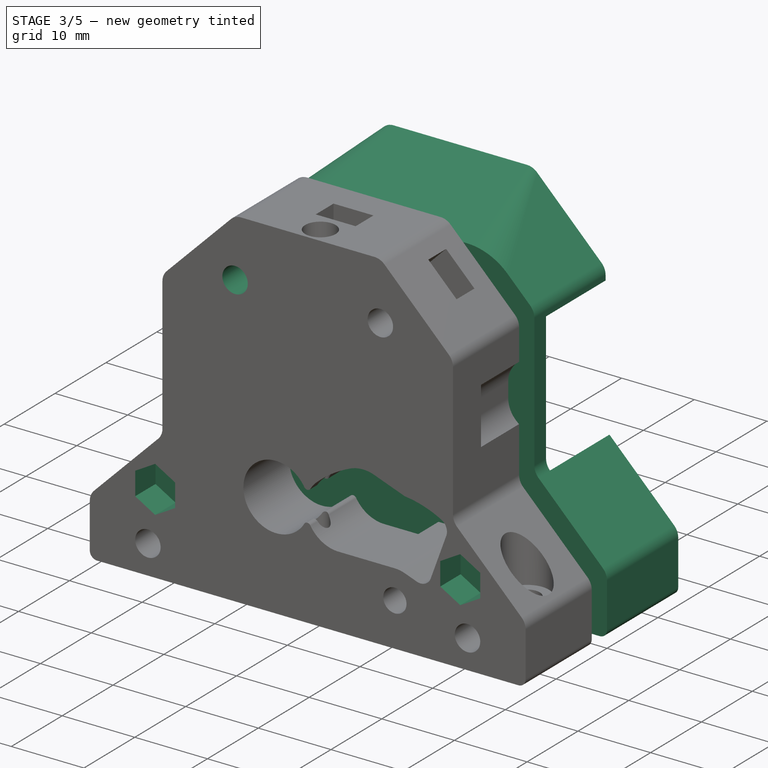
[diagram: stage 3 of 5 — iso view after this stage's code; geometry added in this stage tinted green]
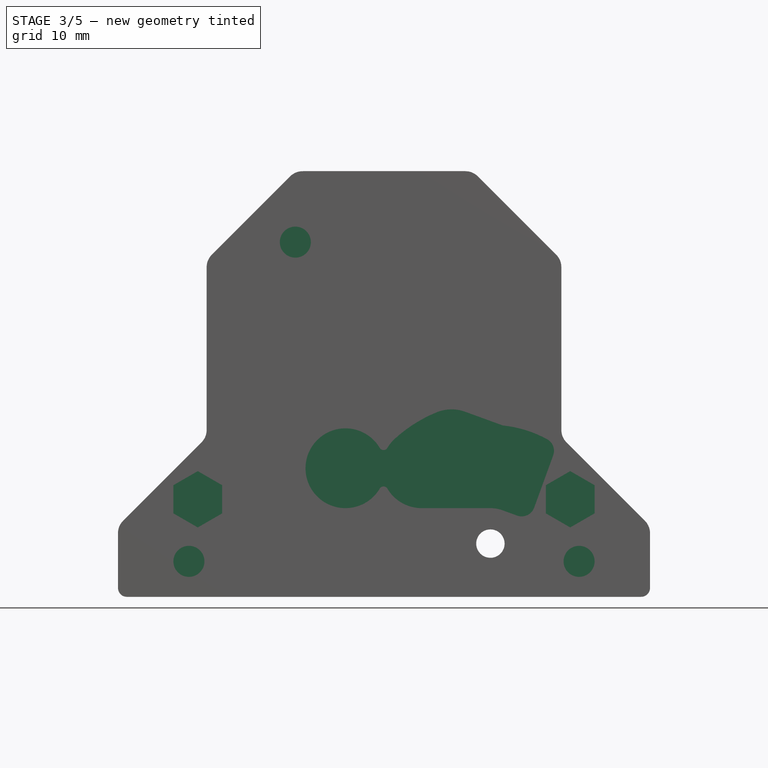
[diagram: stage 3 of 5 — front view after this stage's code; geometry added in this stage tinted green]
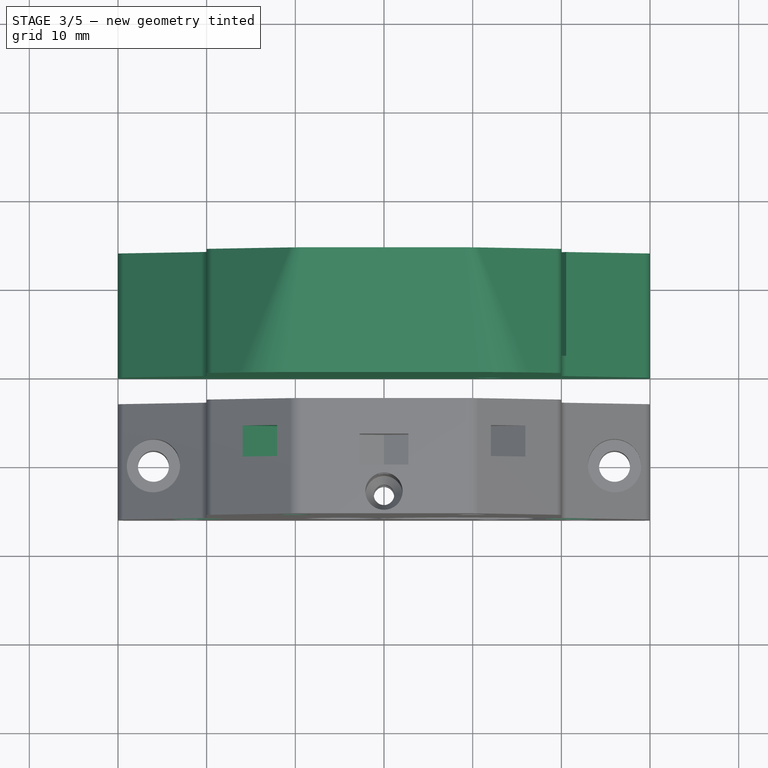
[diagram: stage 3 of 5 — top view after this stage's code; geometry added in this stage tinted green]
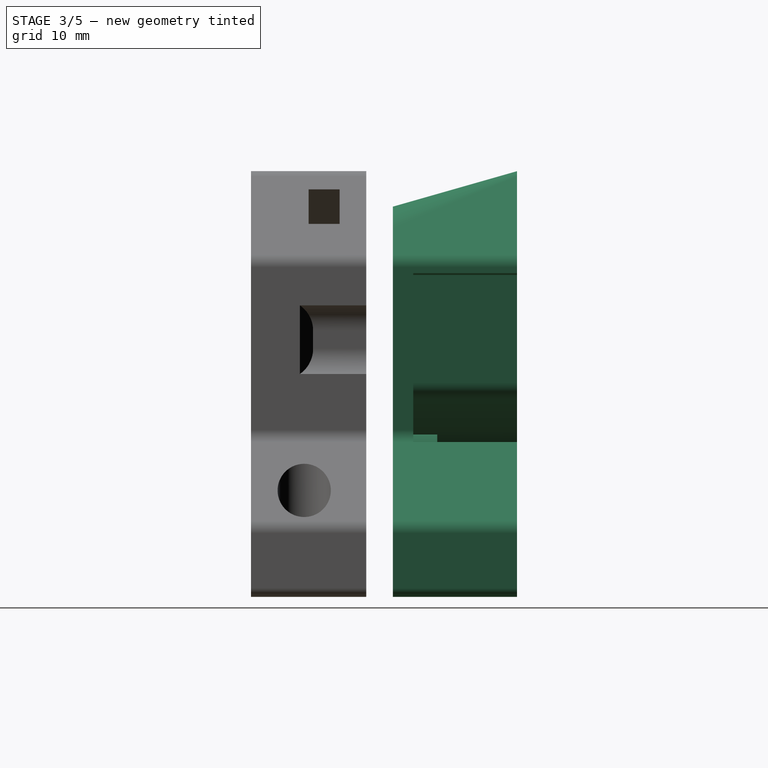
[diagram: stage 3 of 5 — right view after this stage's code; geometry added in this stage tinted green]
FEATURE [Sketcher::SketchObject] Sketch001
  ArcFitTolerance = 1e-06
  AttachmentOffset = pos=(0,0,-14) rot=(0,0,1;0rad)
  AttachmentSupport = -> [XZ_Plane161]
  FullyConstrained = true
  MakeInternals = false
  MapMode = 5
  Placement = pos=(0,14,-3.1e-15) rot=(1,0,0;1.5708rad)
  sketch-geometry (30):
    g0: LineSegment StartX=-30 StartY=1 StartZ=0 EndX=-30 EndY=7.17157 EndZ=0
    g1: LineSegment StartX=-29.4142 StartY=8.58579 StartZ=0 EndX=-20.5858 EndY=17.4142 EndZ=0
    g2: LineSegment StartX=-20 StartY=18.8284 StartZ=0 EndX=-20 EndY=37.1716 EndZ=0
    g3: LineSegment StartX=-19.4142 StartY=38.5858 StartZ=0 EndX=-10.5858 EndY=47.4142 EndZ=0
    g4: LineSegment StartX=-9.17157 StartY=48 StartZ=0 EndX=9.17157 EndY=48 EndZ=0
    g5: LineSegment StartX=10.5858 StartY=47.4142 StartZ=0 EndX=19.4142 EndY=38.5858 EndZ=0
    g6: LineSegment StartX=20 StartY=37.1716 StartZ=0 EndX=20 EndY=18.8284 EndZ=0
    g7: LineSegment StartX=20.5858 StartY=17.4142 StartZ=0 EndX=29.4142 EndY=8.58579 EndZ=0
    g8: LineSegment StartX=30 StartY=7.17157 StartZ=0 EndX=30 EndY=1 EndZ=0
    g9: LineSegment StartX=29 StartY=0 StartZ=0 EndX=-29 EndY=0 EndZ=0
    g10: ArcOfCircle CenterX=-18 CenterY=37.1716 CenterZ=0 NormalX=0 NormalY=0 NormalZ=1 AngleXU=0 Radius=2 StartAngle=2.35619 EndAngle=3.14159
    g11: GeomPoint [constr] X=-20 Y=38 Z=0
    g12: ArcOfCircle CenterX=-9.17157 CenterY=46 CenterZ=0 NormalX=0 NormalY=0 NormalZ=1 AngleXU=0 Radius=2 StartAngle=1.5708 EndAngle=2.35619
    g13: GeomPoint [constr] X=-10 Y=48 Z=0
    g14: ArcOfCircle CenterX=9.17157 CenterY=46 CenterZ=0 NormalX=0 NormalY=0 NormalZ=1 AngleXU=0 Radius=2 StartAngle=0.785398 EndAngle=1.5708
    g15: GeomPoint [constr] X=10 Y=48 Z=0
    g16: ArcOfCircle CenterX=18 CenterY=37.1716 CenterZ=0 NormalX=0 NormalY=0 NormalZ=1 AngleXU=0 Radius=2 StartAngle=9e-16 EndAngle=0.785398
    g17: GeomPoint [constr] X=20 Y=38 Z=0
    g18: ArcOfCircle CenterX=22 CenterY=18.8284 CenterZ=0 NormalX=0 NormalY=0 NormalZ=1 AngleXU=0 Radius=2 StartAngle=3.14159 EndAngle=3.92699
    g19: GeomPoint [constr] X=20 Y=18 Z=0
    g20: ArcOfCircle CenterX=28 CenterY=7.17157 CenterZ=0 NormalX=0 NormalY=0 NormalZ=1 AngleXU=0 Radius=2 StartAngle=0 EndAngle=0.785398
    g21: GeomPoint [constr] X=30 Y=8 Z=0
    g22: ArcOfCircle CenterX=29 CenterY=1 CenterZ=0 NormalX=0 NormalY=0 NormalZ=1 AngleXU=0 Radius=1 StartAngle=4.71239 EndAngle=6.28319
    g23: GeomPoint [constr] X=30 Y=0 Z=0
    g24: ArcOfCircle CenterX=-29 CenterY=1 CenterZ=0 NormalX=0 NormalY=0 NormalZ=1 AngleXU=0 Radius=1 StartAngle=3.14159 EndAngle=4.71239
    g25: GeomPoint [constr] X=-30 Y=0 Z=0
    g26: ArcOfCircle CenterX=-28 CenterY=7.17157 CenterZ=0 NormalX=0 NormalY=0 NormalZ=1 AngleXU=0 Radius=2 StartAngle=2.35619 EndAngle=3.14159
    g27: GeomPoint [constr] X=-30 Y=8 Z=0
    g28: ArcOfCircle CenterX=-22 CenterY=18.8284 CenterZ=0 NormalX=0 NormalY=0 NormalZ=1 AngleXU=0 Radius=2 StartAngle=5.49779 EndAngle=6.28319
    g29: GeomPoint [constr] X=-20 Y=18 Z=0
  constraints (67):
    c: PointOnObject(g25,g-1)
    c: Vertical(g0)
    c: Vertical(g2)
    c: Vertical(g6)
    c: Vertical(g8)
    c: Horizontal(g9)
    c: Symmetric(g27,g21,g-2)
    c: Perpendicular(g7,g1)
    c: Angle(g7) = -0.785398
    c: Parallel(g7,g5)
    c: Symmetric(g15,g13,g-2)
    c: DistanceY(g15) = 48
    c: DistanceX(g29,g19) = 40
    c: DistanceX(g25,g23) = 60
    c: Symmetric(g17,g11,g-2)
    c: DistanceY(g23,g21) = 8
    c: DistanceX(g13,g15) = 20
    c: PointOnObject(g11,g2)
    c: PointOnObject(g11,g3)
    c: Tangent(g2,g10) = 1.5708
    c: Tangent(g3,g10) = 1.5708
    c: PointOnObject(g13,g3)
    c: PointOnObject(g13,g4)
    c: Tangent(g3,g12) = 1.5708
    c: Tangent(g4,g12) = 1.5708
    c: PointOnObject(g15,g4)
    c: PointOnObject(g15,g5)
    c: Tangent(g4,g14) = 1.5708
    c: Tangent(g5,g14) = 1.5708
    c: PointOnObject(g17,g5)
    c: PointOnObject(g17,g6)
    c: Tangent(g5,g16) = 1.5708
    c: Tangent(g6,g16) = 1.5708
    c: PointOnObject(g19,g6)
    c: PointOnObject(g19,g7)
    c: Tangent(g6,g18) = -1.5708
    c: Tangent(g7,g18) = -1.5708
    c: PointOnObject(g21,g7)
    c: PointOnObject(g21,g8)
    c: Tangent(g7,g20) = 1.5708
    c: Tangent(g8,g20) = 1.5708
    c: PointOnObject(g23,g8)
    c: PointOnObject(g23,g9)
    c: Tangent(g8,g22) = 1.5708
    c: Tangent(g9,g22) = 1.5708
    c: PointOnObject(g25,g0)
    c: PointOnObject(g25,g9)
    c: Tangent(g0,g24) = 1.5708
    c: Tangent(g9,g24) = 1.5708
    c: PointOnObject(g27,g0)
    c: PointOnObject(g27,g1)
    c: Tangent(g0,g26) = 1.5708
    c: Tangent(g1,g26) = 1.5708
    c: PointOnObject(g29,g1)
    c: PointOnObject(g29,g2)
    c: Tangent(g1,g28) = -1.5708
    c: Tangent(g2,g28) = -1.5708
    c: Equal(g28,g26)
    c: Radius(g28) = 2
    c: Equal(g20,g18)
    c: Equal(g18,g16)
    c: Equal(g16,g14)
    c: Equal(g14,g12)
    c: Equal(g12,g10)
    c: Equal(g22,g24)
    c: Radius(g22) = 1
    c: Equal(g26,g20)
FEATURE [Sketcher::SketchObject] Sketch002
  ArcFitTolerance = 1e-06
  AttachmentSupport = -> [XZ_Plane161]
  FullyConstrained = true
  MakeInternals = false
  MapMode = 5
  Placement = pos=(0,0,0) rot=(1,0,0;1.5708rad)
  sketch-geometry (30):
    g0: LineSegment StartX=-30 StartY=1 StartZ=0 EndX=-30 EndY=7.17157 EndZ=0
    g1: LineSegment StartX=-29.4142 StartY=8.58579 StartZ=0 EndX=-20.5858 EndY=17.4142 EndZ=0
    g2: LineSegment StartX=-20 StartY=18.8284 StartZ=0 EndX=-20 EndY=37.1716 EndZ=0
    g3: LineSegment StartX=-19.4142 StartY=38.5858 StartZ=0 EndX=-16.3431 EndY=41.6569 EndZ=0
    g4: LineSegment StartX=-10.6863 StartY=44 StartZ=0 EndX=10.6863 EndY=44 EndZ=0
    g5: LineSegment StartX=16.3431 StartY=41.6569 StartZ=0 EndX=19.4142 EndY=38.5858 EndZ=0
    g6: LineSegment StartX=20 StartY=37.1716 StartZ=0 EndX=20 EndY=18.8284 EndZ=0
    g7: LineSegment StartX=20.5858 StartY=17.4142 StartZ=0 EndX=29.4142 EndY=8.58579 EndZ=0
    g8: LineSegment StartX=30 StartY=7.17157 StartZ=0 EndX=30 EndY=1 EndZ=0
    g9: LineSegment StartX=29 StartY=0 StartZ=0 EndX=-29 EndY=0 EndZ=0
    g10: ArcOfCircle CenterX=-18 CenterY=37.1716 CenterZ=0 NormalX=0 NormalY=0 NormalZ=1 AngleXU=0 Radius=2 StartAngle=2.35619 EndAngle=3.14159
    g11: GeomPoint [constr] X=-20 Y=38 Z=0
    g12: ArcOfCircle CenterX=-10.6863 CenterY=36 CenterZ=0 NormalX=0 NormalY=0 NormalZ=1 AngleXU=0 Radius=8 StartAngle=1.5708 EndAngle=2.35619
    g13: GeomPoint [constr] X=-14 Y=44 Z=0
    g14: ArcOfCircle CenterX=10.6863 CenterY=36 CenterZ=0 NormalX=0 NormalY=0 NormalZ=1 AngleXU=0 Radius=8 StartAngle=0.785398 EndAngle=1.5708
    g15: GeomPoint [constr] X=14 Y=44 Z=0
    g16: ArcOfCircle CenterX=18 CenterY=37.1716 CenterZ=0 NormalX=0 NormalY=0 NormalZ=1 AngleXU=0 Radius=2 StartAngle=1e-16 EndAngle=0.785398
    g17: GeomPoint [constr] X=20 Y=38 Z=0
    g18: ArcOfCircle CenterX=22 CenterY=18.8284 CenterZ=0 NormalX=0 NormalY=0 NormalZ=1 AngleXU=0 Radius=2 StartAngle=3.14159 EndAngle=3.92699
    g19: GeomPoint [constr] X=20 Y=18 Z=0
    g20: ArcOfCircle CenterX=28 CenterY=7.17157 CenterZ=0 NormalX=0 NormalY=0 NormalZ=1 AngleXU=0 Radius=2 StartAngle=1e-16 EndAngle=0.785398
    g21: GeomPoint [constr] X=30 Y=8 Z=0
    g22: ArcOfCircle CenterX=29 CenterY=1 CenterZ=0 NormalX=0 NormalY=0 NormalZ=1 AngleXU=0 Radius=1 StartAngle=4.71239 EndAngle=6.28319
    g23: GeomPoint [constr] X=30 Y=0 Z=0
    g24: ArcOfCircle CenterX=-29 CenterY=1 CenterZ=0 NormalX=0 NormalY=0 NormalZ=1 AngleXU=0 Radius=1 StartAngle=3.14159 EndAngle=4.71239
    g25: GeomPoint [constr] X=-30 Y=0 Z=0
    g26: ArcOfCircle CenterX=-28 CenterY=7.17157 CenterZ=0 NormalX=0 NormalY=0 NormalZ=1 AngleXU=0 Radius=2 StartAngle=2.35619 EndAngle=3.14159
    g27: GeomPoint [constr] X=-30 Y=8 Z=0
    g28: ArcOfCircle CenterX=-22 CenterY=18.8284 CenterZ=0 NormalX=0 NormalY=0 NormalZ=1 AngleXU=0 Radius=2 StartAngle=5.49779 EndAngle=6.28319
    g29: GeomPoint [constr] X=-20 Y=18 Z=0
  constraints (68):
    c: PointOnObject(g25,g-1)
    c: Vertical(g2)
    c: Horizontal(g4)
    c: Vertical(g6)
    c: PointOnObject(g23,g-1)
    c: Vertical(g8)
    c: Symmetric(g21,g27,g-2)
    c: Vertical(g0)
    c: Symmetric(g11,g17,g-2)
    c: Perpendicular(g3,g5)
    c: Parallel(g5,g7)
    c: Perpendicular(g1,g7)
    c: Angle(g7) = -0.785398
    c: DistanceY(g15) = 44
    c: DistanceX(g17) = 20
    c: DistanceY(g17) = 38
    c: DistanceY(g23,g21) = 8
    c: DistanceX(g23) = 30
    c: PointOnObject(g11,g2)
    c: PointOnObject(g11,g3)
    c: Tangent(g2,g10) = 1.5708
    c: Tangent(g3,g10) = 1.5708
    c: PointOnObject(g13,g3)
    c: PointOnObject(g13,g4)
    c: Tangent(g3,g12) = 1.5708
    c: Tangent(g4,g12) = 1.5708
    c: PointOnObject(g15,g4)
    c: PointOnObject(g15,g5)
    c: Tangent(g4,g14) = 1.5708
    c: Tangent(g5,g14) = 1.5708
    c: PointOnObject(g17,g5)
    c: PointOnObject(g17,g6)
    c: Tangent(g5,g16) = 1.5708
    c: Tangent(g6,g16) = 1.5708
    c: PointOnObject(g19,g6)
    c: PointOnObject(g19,g7)
    c: Tangent(g6,g18) = -1.5708
    c: Tangent(g7,g18) = -1.5708
    c: PointOnObject(g21,g7)
    c: PointOnObject(g21,g8)
    c: Tangent(g7,g20) = 1.5708
    c: Tangent(g8,g20) = 1.5708
    c: PointOnObject(g23,g8)
    c: PointOnObject(g23,g9)
    c: Tangent(g8,g22) = 1.5708
    c: Tangent(g9,g22) = 1.5708
    c: PointOnObject(g25,g0)
    c: PointOnObject(g25,g9)
    c: Tangent(g0,g24) = 1.5708
    c: Tangent(g9,g24) = 1.5708
    c: PointOnObject(g27,g0)
    c: PointOnObject(g27,g1)
    c: Tangent(g0,g26) = 1.5708
    c: Tangent(g1,g26) = 1.5708
    c: PointOnObject(g29,g1)
    c: PointOnObject(g29,g2)
    c: Tangent(g1,g28) = -1.5708
    c: Tangent(g2,g28) = -1.5708
    c: Equal(g28,g10)
    c: Equal(g28,g16)
    c: Equal(g28,g18)
    c: Equal(g28,g20)
    c: Radius(g28) = 2
    c: Equal(g26,g28)
    c: Equal(g12,g14)
    c: Radius(g12) = 8
    c: Equal(g24,g22)
    c: Radius(g24) = 1
FEATURE [PartDesign::AdditiveLoft] AdditiveLoft
  Closed = false
  Placement = pos=(0,0,0) rot=(1,0,0;1.5708rad)
  Profile = -> Sketch001
  Ruled = false
  Sections = -> [Sketch002]
  Suppressed = false
FEATURE [Sketcher::SketchObject] Sketch011
  ArcFitTolerance = 1e-06
  AttachmentOffset = pos=(-4.35,0,14.5) rot=(0,0,1;0rad)
  AttachmentSupport = -> [XY_Plane161]
  FullyConstrained = true
  MakeInternals = false
  MapMode = 5
  Placement = pos=(-4.35,0,14.5) rot=(0,0,1;0rad)
  sketch-geometry (8):
    g0: LineSegment StartX=0 StartY=2 StartZ=0 EndX=3 EndY=2 EndZ=0
    g1: LineSegment StartX=3 StartY=2 StartZ=0 EndX=3 EndY=2.7 EndZ=0
    g2: LineSegment StartX=3 StartY=2.7 StartZ=0 EndX=4 EndY=2.7 EndZ=0
    g3: LineSegment StartX=4 StartY=2.7 StartZ=0 EndX=4 EndY=5 EndZ=0
    g4: LineSegment StartX=4 StartY=5 StartZ=0 EndX=5.5 EndY=5 EndZ=0
    g5: LineSegment StartX=5.5 StartY=5 StartZ=0 EndX=5.5 EndY=14 EndZ=0
    g6: LineSegment StartX=5.5 StartY=14 StartZ=0 EndX=0 EndY=14 EndZ=0
    g7: LineSegment StartX=0 StartY=14 StartZ=0 EndX=0 EndY=2 EndZ=0
  constraints (24):
    c: PointOnObject(g0,g-2)
    c: Horizontal(g0)
    c: Coincident(g0,g1)
    c: Vertical(g1)
    c: Coincident(g1,g2)
    c: Horizontal(g2)
    c: Coincident(g2,g3)
    c: Vertical(g3)
    c: Coincident(g3,g4)
    c: Horizontal(g4)
    c: Coincident(g4,g5)
    c: Vertical(g5)
    c: Coincident(g5,g6)
    c: PointOnObject(g6,g-2)
    c: Horizontal(g6)
    c: Coincident(g6,g7)
    c: Coincident(g7,g0)
    c: DistanceX(g0,g0) = 3
    c: DistanceX(g2) = 4
    c: DistanceX(g4) = 5.5
    c: DistanceY(g0) = 2
    c: DistanceY(g1) = 2.7
    c: DistanceY(g3) = 5
    c: DistanceY(g6) = 14
FEATURE [Sketcher::SketchObject] Sketch012
  ArcFitTolerance = 1e-06
  AttachmentOffset = pos=(0,0,-2.3) rot=(0,0,1;0rad)
  AttachmentSupport = -> [XZ_Plane161]
  FullyConstrained = true
  MakeInternals = false
  MapMode = 5
  Placement = pos=(0,2.3,-5e-16) rot=(1,0,0;1.5708rad)
  sketch-geometry (15):
    g0: GeomPoint X=12 Y=6 Z=0
    g1: ArcOfCircle CenterX=12 CenterY=6 CenterZ=0 NormalX=0 NormalY=0 NormalZ=1 AngleXU=0 Radius=3.5 StartAngle=4.05563 EndAngle=5.89049
    g2: GeomPoint X=4.25 Y=14.5 Z=0
    g3: ArcOfCircle CenterX=4.25 CenterY=14.5 CenterZ=0 NormalX=0 NormalY=0 NormalZ=1 AngleXU=0 Radius=5.5 StartAngle=2.31007 EndAngle=4.05563
    g4: LineSegment StartX=9.86306 StartY=3.22809 StartZ=0 EndX=0.891957 EndY=10.1441 EndZ=0
    g5: LineSegment [constr] StartX=12 StartY=6 StartZ=0 EndX=4.25 EndY=14.5 EndZ=0
    g6: LineSegment StartX=15.2336 StartY=4.66061 StartZ=0 EndX=26.8283 EndY=32.6528 EndZ=0
    g7: LineSegment StartX=8.5 StartY=24.1894 StartZ=0 EndX=8.5 EndY=36.2985 EndZ=0
    g8: ArcOfCircle [constr] CenterX=12 CenterY=6 CenterZ=0 NormalX=0 NormalY=0 NormalZ=1 AngleXU=0 Radius=30.5 StartAngle=1.06309 EndAngle=1.6858
    g9: ArcOfCircle CenterX=12 CenterY=6 CenterZ=0 NormalX=0 NormalY=0 NormalZ=1 AngleXU=0 Radius=17.0027 StartAngle=1.86443 EndAngle=2.31007
    g10: GeomPoint X=12 Y=36.5 Z=0
    g11: ArcOfCircle CenterX=6.5 CenterY=24.1894 CenterZ=0 NormalX=0 NormalY=0 NormalZ=1 AngleXU=0 Radius=2 StartAngle=5.00602 EndAngle=6.28319
    g12: ArcOfCircle CenterX=12 CenterY=6 CenterZ=0 NormalX=0 NormalY=0 NormalZ=1 AngleXU=0 Radius=30.5 StartAngle=1.5708 EndAngle=1.6858
    g13: LineSegment StartX=12 StartY=36.5 StartZ=0 EndX=28.4219 EndY=36.5 EndZ=0
    g14: LineSegment StartX=26.8283 StartY=32.6528 StartZ=0 EndX=28.4219 EndY=36.5 EndZ=0
  constraints (34):
    c: DistanceX(g0) = 12
    c: DistanceY(g0) = 6
    c: Coincident(g1,g0)
    c: DistanceX(g2) = 4.25
    c: DistanceY(g2) = 14.5
    c: Coincident(g3,g2)
    c: Tangent(g4,g3) = 1.5708
    c: Diameter(g3) = 11
    c: Tangent(g4,g1) = 1.5708
    c: Diameter(g1) = 7
    c: Coincident(g5,g0)
    c: Coincident(g5,g2)
    c: PointOnObject(g3,g5)
    c: Tangent(g6,g1) = -1.5708
    c: Angle(g6) = 1.1781
    c: Vertical(g7)
    c: Coincident(g8,g0)
    c: Coincident(g8,g7)
    c: Coincident(g8,g6)
    c: Coincident(g9,g0)
    c: Coincident(g9,g3)
    c: Vertical(g10,g0)
    c: DistanceY(g0,g10) = 30.5
    c: Tangent(g7,g11) = -1.5708
    c: Tangent(g9,g11) = 1.5708
    c: Radius(g11) = 2
    c: Coincident(g12,g10)
    c: Coincident(g12,g7)
    c: Coincident(g12,g0)
    c: DistanceX(g7,g0) = 3.5
    c: Coincident(g13,g10)
    c: Horizontal(g13)
    c: Coincident(g14,g13)
    c: Tangent(g14,g6) = -1.5708
FEATURE [PartDesign::Pocket] Pocket006
  BaseFeature = -> AdditiveLoft
  Direction = (0,1,-2e-16)
  Length = 5
  Length2 = 5
  Placement = pos=(0,0,0) rot=(1,0,0;1.5708rad)
  Profile = -> Sketch012
  ReferenceAxis = -> Sketch012 [N_Axis]
  Suppressed = false
  Type = 1
FEATURE [Sketcher::SketchObject] Sketch013
  ArcFitTolerance = 1e-06
  AttachmentSupport = -> [XZ_Plane161]
  FullyConstrained = true
  MakeInternals = false
  MapMode = 5
  Placement = pos=(0,0,0) rot=(1,0,0;1.5708rad)
  sketch-geometry (1):
    g0: Circle CenterX=-4.35 CenterY=14.5 CenterZ=0 NormalX=0 NormalY=0 NormalZ=1 AngleXU=0 Radius=6
  constraints (3):
    c: Diameter(g0) = 12
    c: DistanceX(g0) = -4.35
    c: DistanceY(g0) = 14.5
FEATURE [PartDesign::Pad] Pad002
  BaseFeature = -> Pocket006
  Direction = (0,-1,2e-16)
  Length = 5
  Length2 = 10
  Placement = pos=(0,0,0) rot=(1,0,0;1.5708rad)
  Profile = -> Sketch013
  ReferenceAxis = -> Sketch013 [N_Axis]
  Refine = true
  Reversed = true
  Suppressed = false
  Type = 0
FEATURE [PartDesign::Groove] Groove001
  Angle = 360
  Angle2 = 60
  Axis = (0,1,0)
  Base = (-4.35,0,14.5)
  BaseFeature = -> Pad002
  Placement = pos=(0,0,0) rot=(1,0,0;1.5708rad)
  Profile = -> Sketch011
  ReferenceAxis = -> Sketch011 [V_Axis]
  Refine = true
  Suppressed = false
  Type = 0
FEATURE [Sketcher::SketchObject] Sketch014
  ArcFitTolerance = 1e-06
  AttachmentSupport = -> [XZ_Plane161]
  FullyConstrained = true
  MakeInternals = false
  MapMode = 5
  Placement = pos=(0,0,0) rot=(1,0,0;1.5708rad)
  sketch-geometry (1):
    g0: Circle CenterX=12 CenterY=6 CenterZ=0 NormalX=0 NormalY=0 NormalZ=1 AngleXU=0 Radius=1.6
  constraints (3):
    c: DistanceX(g0) = 12
    c: DistanceY(g0) = 6
    c: Diameter(g0) = 3.2
FEATURE [PartDesign::Pocket] Pocket007
  BaseFeature = -> Groove001
  Direction = (0,1,-2e-16)
  Length = 5
  Length2 = 5
  Placement = pos=(0,0,0) rot=(1,0,0;1.5708rad)
  Profile = -> Sketch014
  ReferenceAxis = -> Sketch014 [N_Axis]
  Suppressed = false
  Type = 1
FEATURE [Sketcher::SketchObject] Sketch015
  ArcFitTolerance = 1e-06
  AttachmentSupport = -> [YZ_Plane161]
  FullyConstrained = true
  MakeInternals = false
  MapMode = 5
  Placement = pos=(0,0,0) rot=(0.57735,0.57735,0.57735;2.0944rad)
  sketch-geometry (2):
    g0: Circle CenterX=8.5 CenterY=31 CenterZ=0 NormalX=0 NormalY=0 NormalZ=1 AngleXU=0 Radius=1.75
    g1: Circle CenterX=8.5 CenterY=26.5 CenterZ=0 NormalX=0 NormalY=0 NormalZ=1 AngleXU=0 Radius=1
  constraints (6):
    c: DistanceX(g0) = 8.5
    c: DistanceY(g0) = 31
    c: Diameter(g0) = 3.5
    c: Vertical(g1,g0)
    c: Diameter(g1) = 2
    c: DistanceY(g1) = 26.5
FEATURE [PartDesign::Pocket] Pocket008
  BaseFeature = -> Pocket007
  Direction = (-1,0,0)
  Length = 5
  Length2 = 5
  Placement = pos=(0,0,0) rot=(1,0,0;1.5708rad)
  Profile = -> Sketch015
  ReferenceAxis = -> Sketch015 [N_Axis]
  Reversed = true
  Suppressed = false
  Type = 1
FEATURE [Sketcher::SketchObject] Sketch016
  ArcFitTolerance = 1e-06
  AttachmentOffset = pos=(0,0,7) rot=(0,0,1;0rad)
  AttachmentSupport = -> [YZ_Plane161]
  FullyConstrained = true
  MakeInternals = false
  MapMode = 5
  Placement = pos=(7,0,0) rot=(0.57735,0.57735,0.57735;2.0944rad)
  sketch-geometry (10):
    g0: LineSegment [constr] StartX=11.6754 StartY=31 StartZ=0 EndX=10.0877 EndY=33.75 EndZ=0
    g1: LineSegment StartX=10.0877 StartY=33.75 StartZ=0 EndX=6.91229 EndY=33.75 EndZ=0
    g2: LineSegment StartX=6.91229 StartY=33.75 StartZ=0 EndX=5.32457 EndY=31 EndZ=0
    g3: LineSegment StartX=5.32457 StartY=31 StartZ=0 EndX=6.91229 EndY=28.25 EndZ=0
    g4: LineSegment StartX=6.91229 StartY=28.25 StartZ=0 EndX=10.0877 EndY=28.25 EndZ=0
    g5: LineSegment [constr] StartX=10.0877 StartY=28.25 StartZ=0 EndX=11.6754 EndY=31 EndZ=0
    g6: Circle [constr] CenterX=8.5 CenterY=31 CenterZ=0 NormalX=0 NormalY=0 NormalZ=1 AngleXU=0 Radius=3.17543
    g7: LineSegment StartX=10.0877 StartY=33.75 StartZ=0 EndX=14 EndY=33.75 EndZ=0
    g8: LineSegment StartX=14 StartY=33.75 StartZ=0 EndX=14 EndY=28.25 EndZ=0
    g9: LineSegment StartX=14 StartY=28.25 StartZ=0 EndX=10.0877 EndY=28.25 EndZ=0
  constraints (25):
    c: Coincident(g0,g1)
    c: Coincident(g1,g2)
    c: Coincident(g2,g3)
    c: Coincident(g3,g4)
    c: Coincident(g4,g5)
    c: Coincident(g5,g0)
    c: Equal(g0, g1-g5) x5
    c: PointOnObject(g0,g6)
    c: PointOnObject(g1,g6)
    c: PointOnObject(g2,g6)
    c: PointOnObject(g3,g6)
    c: PointOnObject(g4,g6)
    c: PointOnObject(g5,g6)
    c: DistanceX(g6) = 8.5
    c: DistanceY(g6) = 31
    c: Horizontal(g1)
    c: Coincident(g0,g7)
    c: Horizontal(g7)
    c: Coincident(g7,g8)
    c: Vertical(g8)
    c: Coincident(g8,g9)
    c: Coincident(g9,g4)
    c: Horizontal(g9)
    c: DistanceX(g7) = 14
    c: DistanceY(g8,g8) = 5.5
FEATURE [PartDesign::Pocket] Pocket009
  BaseFeature = -> Pocket008
  Direction = (-1,0,0)
  Length = 3.5
  Length2 = 5
  Placement = pos=(0,0,0) rot=(1,0,0;1.5708rad)
  Profile = -> Sketch016
  ReferenceAxis = -> Sketch016 [N_Axis]
  Suppressed = false
  Type = 0
FEATURE [PartDesign::Mirrored] Mirrored004
  BaseFeature = -> Groove009
  MirrorPlane = -> YZ_Plane163
  Originals = -> [Pocket026,Groove009]
  Placement = pos=(0,0,0) rot=(1,0,0;1.5708rad)
  Suppressed = false
  TransformMode = 0
FEATURE [PartDesign::Pocket] Pocket027
  BaseFeature = -> Mirrored004
  Direction = (0,1,-2e-16)
  Length = 3.5
  Length2 = 5
  Placement = pos=(0,0,0) rot=(1,0,0;1.5708rad)
  Profile = -> Sketch031
  ReferenceAxis = -> Sketch031 [N_Axis]
  Reversed = true
  Suppressed = false
  Type = 1
FEATURE [Sketcher::SketchObject] Sketch041
  ArcFitTolerance = 1e-06
  AttachmentOffset = pos=(0,0,11.7) rot=(0,0,1;0rad)
  AttachmentSupport = -> [XZ_Plane163]
  FullyConstrained = true
  MakeInternals = false
  MapMode = 5
  Placement = pos=(0,-11.7,2.6e-15) rot=(1,0,0;1.5708rad)
  sketch-geometry (2):
    g0: Circle CenterX=21 CenterY=11 CenterZ=0 NormalX=0 NormalY=0 NormalZ=1 AngleXU=0 Radius=1.75
    g1: Circle CenterX=-21 CenterY=11 CenterZ=0 NormalX=0 NormalY=0 NormalZ=1 AngleXU=0 Radius=1.75
  constraints (5):
    c: Equal(g1,g0)
    c: Symmetric(g1,g0,g-2)
    c: Diameter(g0) = 3.5
    c: DistanceY(g0) = 11
    c: DistanceX(g0) = 21
FEATURE [PartDesign::Pocket] Pocket028
  BaseFeature = -> Pocket027
  Direction = (0,1,-2e-16)
  Length = 5
  Length2 = 5
  Placement = pos=(0,0,0) rot=(1,0,0;1.5708rad)
  Profile = -> Sketch041
  ReferenceAxis = -> Sketch041 [N_Axis]
  Suppressed = false
  Type = 1
FEATURE [PartDesign::Body] Body003  label="mid-body"
  AllowCompound = false
  Group = -> [Sketch017,Sketch018,Sketch007,Sketch019,Pad003,Sketch020,Pocket,Chamfer,Groove002,Pocket010,Groove003,Sketch021,Groove004,Fillet002,Sketch022,Pocket011,Sketch023,Pocket012,Sketch028,Pocket016,Sketch029,Pocket017,Sketch030,Pocket018,Sketch031,Sketch035,Pocket023,Sketch036,Pocket024,Sketch037,Groove006,Mirrored001,Sketch039,Pocket026,Sketch040,Groove009,Mirrored004,Pocket027,Sketch041,Pocket028]
  Origin = -> Origin163
  Tip = -> Pocket028
FEATURE [App::Part] Part  label="main"
  Group = -> [Body,Part001,Body001,Body002,Body003]
  Origin = -> Origin001
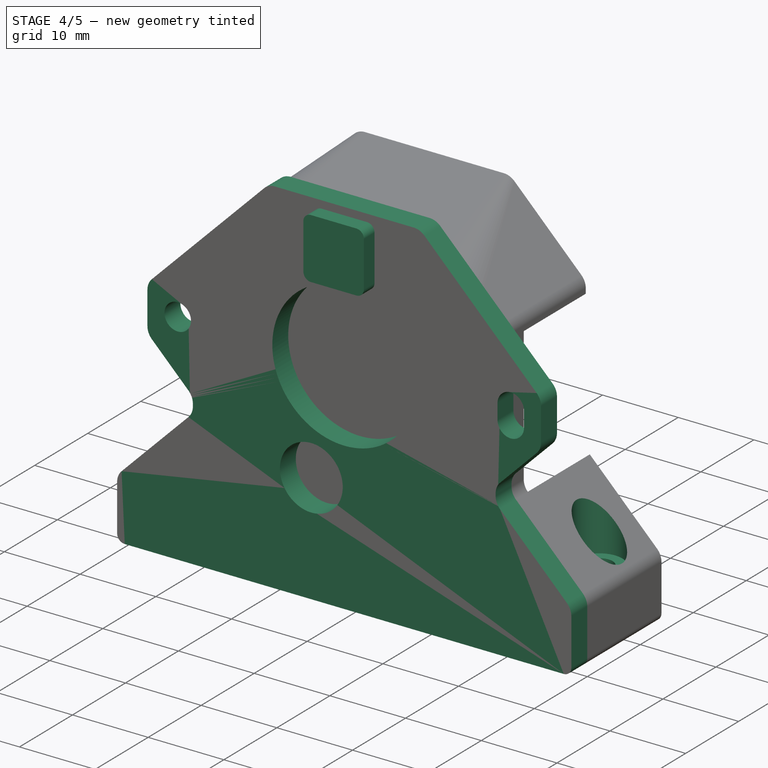
[diagram: stage 4 of 5 — iso view after this stage's code; geometry added in this stage tinted green]
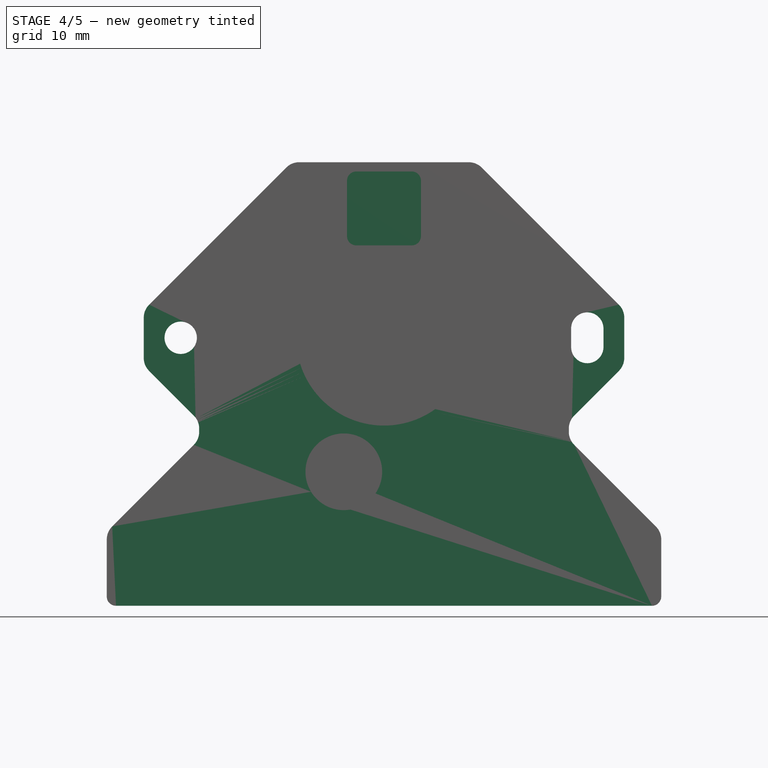
[diagram: stage 4 of 5 — front view after this stage's code; geometry added in this stage tinted green]
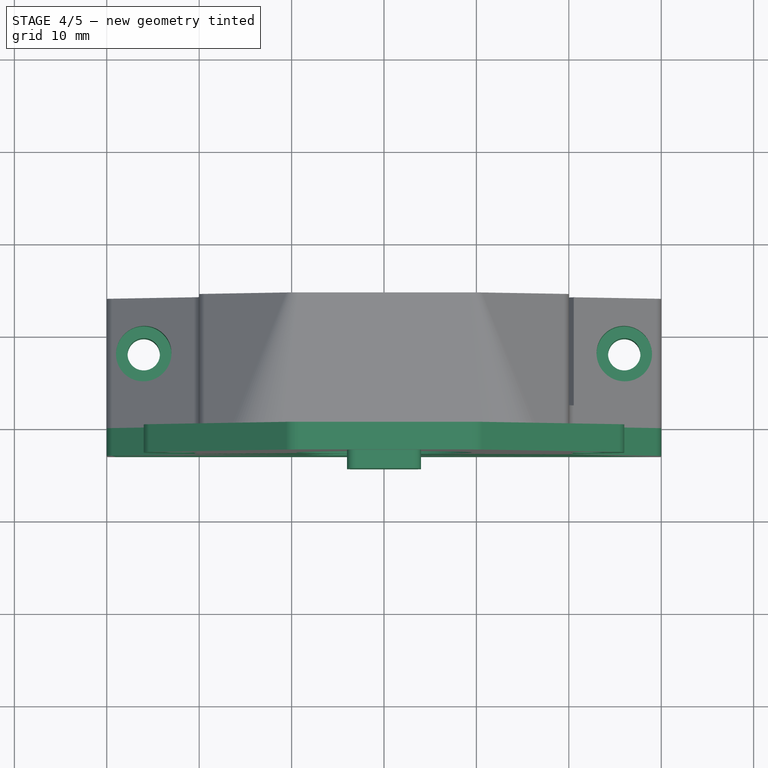
[diagram: stage 4 of 5 — top view after this stage's code; geometry added in this stage tinted green]
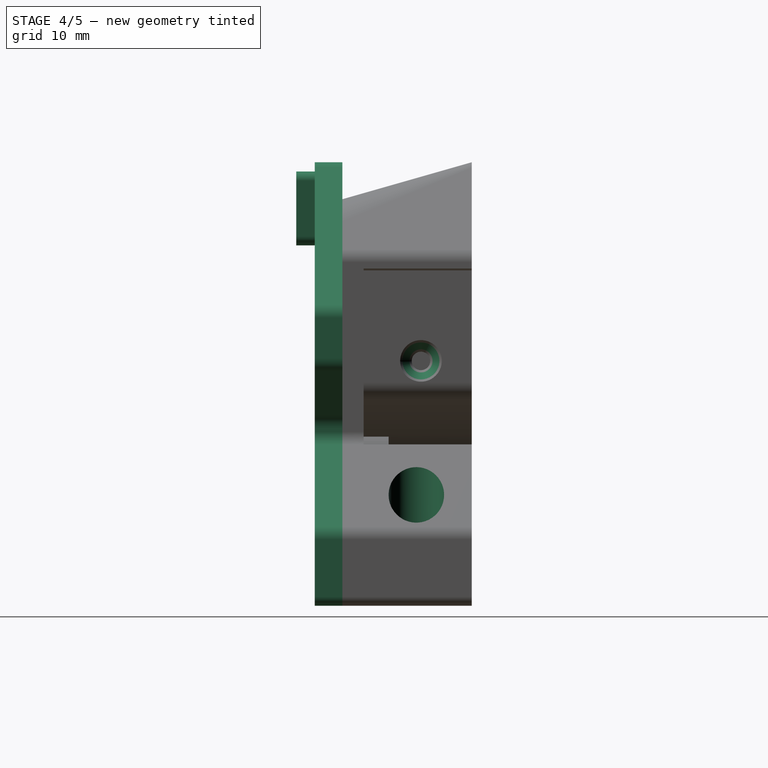
[diagram: stage 4 of 5 — right view after this stage's code; geometry added in this stage tinted green]
FEATURE [Part::Feature] Part__Feature436  label="Idler Gear Shaft"
  Placement = pos=(-14,-4.3,44) rot=(0.57735,0.57735,0.57735;4.18879rad)
  shape: bbox 20 x 3.247 x 3.247 mm, 5 faces (baked)
FEATURE [Part::Feature] Part__Feature437  label="Needle Bearing"
  Placement = pos=(-7.501,-4.3,44) rot=(0.706567,0.039055,0.706567;3.06352rad)
  shape: bbox 6 x 1.076 x 1.076 mm, 5 faces (baked)
FEATURE [Part::Feature] Part__Feature438  label="Needle Bearing001"
  Placement = pos=(-7.501,-4.3,44) rot=(0.706567,0.039055,0.706567;3.06352rad)
  shape: bbox 6 x 1.076 x 1.076 mm, 5 faces (baked)
FEATURE [Part::Feature] Part__Feature439  label="Needle Bearing002"
  Placement = pos=(-7.501,-4.3,44) rot=(0.706567,0.039055,0.706567;3.06352rad)
  shape: bbox 6 x 1.076 x 1.076 mm, 5 faces (baked)
FEATURE [Part::Feature] Part__Feature440  label="Needle Bearing003"
  Placement = pos=(-7.501,-4.3,44) rot=(0.706567,0.039055,0.706567;3.06352rad)
  shape: bbox 6 x 1.076 x 1.076 mm, 5 faces (baked)
FEATURE [Part::Feature] Part__Feature441  label="Needle Bearing004"
  Placement = pos=(-7.501,-4.3,44) rot=(0.706567,0.039055,0.706567;3.06352rad)
  shape: bbox 6 x 1.076 x 1.076 mm, 5 faces (baked)
FEATURE [Part::Feature] Part__Feature442  label="Needle Bearing005"
  Placement = pos=(-7.501,-4.3,44) rot=(0.706567,0.039055,0.706567;3.06352rad)
  shape: bbox 7 x 4.7 x 4.7 mm, 28 faces (baked)
FEATURE [App::Part] Needle_Bearing  label="Needle Bearing006"
  Group = -> [Part__Feature437,Part__Feature438,Part__Feature439,Part__Feature440,Part__Feature441,Part__Feature442]
  Origin = -> Origin155
FEATURE [Part::Feature] Part__Feature443  label="Idler Gear"
  Placement = pos=(-6.95013,-4.3,44) rot=(-0.565504,0.600342,-0.565504;2.06025rad)
  shape: bbox 14 x 10.59 x 10.59 mm, 128 faces (baked)
FEATURE [Part::Feature] Part__Feature444  label="Needle Bearing007"
  Placement = pos=(-0.5,-4.3,44) rot=(0.706141,0.052244,0.706141;3.0372rad)
  shape: bbox 6 x 1.071 x 1.071 mm, 5 faces (baked)
FEATURE [Part::Feature] Part__Feature445  label="Needle Bearing008"
  Placement = pos=(-0.5,-4.3,44) rot=(0.706141,0.052244,0.706141;3.0372rad)
  shape: bbox 6 x 1.071 x 1.071 mm, 5 faces (baked)
FEATURE [Part::Feature] Part__Feature446  label="Needle Bearing009"
  Placement = pos=(-0.5,-4.3,44) rot=(0.706141,0.052244,0.706141;3.0372rad)
  shape: bbox 6 x 1.071 x 1.071 mm, 5 faces (baked)
FEATURE [Part::Feature] Part__Feature447  label="Needle Bearing010"
  Placement = pos=(-0.5,-4.3,44) rot=(0.706141,0.052244,0.706141;3.0372rad)
  shape: bbox 6 x 1.071 x 1.071 mm, 5 faces (baked)
FEATURE [Part::Feature] Part__Feature448  label="Needle Bearing011"
  Placement = pos=(-0.5,-4.3,44) rot=(0.706141,0.052244,0.706141;3.0372rad)
  shape: bbox 6 x 1.071 x 1.071 mm, 5 faces (baked)
FEATURE [Part::Feature] Part__Feature449  label="Needle Bearing012"
  Placement = pos=(-0.5,-4.3,44) rot=(0.706141,0.052244,0.706141;3.0372rad)
  shape: bbox 7 x 4.7 x 4.7 mm, 28 faces (baked)
FEATURE [App::Part] Needle_Bearing001  label="Needle Bearing013"
  Group = -> [Part__Feature444,Part__Feature445,Part__Feature446,Part__Feature447,Part__Feature448,Part__Feature449]
  Origin = -> Origin156
FEATURE [App::Part] Idler_Gear_Assembly  label="Idler Gear Assembly"
  Group = -> [Part__Feature436,Needle_Bearing,Part__Feature443,Needle_Bearing001]
  Origin = -> Origin157
  Placement = pos=(-4.4e-15,-7.55568,-0.0895739) rot=(-1,0,0;0.171127rad)
FEATURE [Part::Feature] Part__Feature450  label="MR85 Bearing"
  Placement = pos=(10.8499,4.3,44) rot=(0.537574,-0.649638,-0.537574;1.98935rad)
  shape: bbox 2.5 x 8 x 8 mm, 8 faces (baked)
FEATURE [Part::Feature] Part__Feature451  label="Drive Gear"
  Placement = pos=(-6.95013,4.3,44) rot=(0.701707,0.123352,0.701707;2.89613rad)
  shape: bbox 14 x 9.972 x 9.972 mm, 131 faces (baked)
FEATURE [Part::Feature] Part__Feature452  label="50 Tooth Gear"
  Placement = pos=(10.3485,3.89219,47.5618) rot=(-1,0,0;1.4568rad)
  shape: bbox 7 x 25.98 x 26 mm, 305 faces (baked)
FEATURE [Part::Feature] Part__Feature453  label="50 Tooth Gear001"
  Placement = pos=(10.3485,3.89219,47.5618) rot=(-1,0,0;1.4568rad)
  shape: bbox 26.6 x 5.379 x 5.374 mm, 116 faces (baked)
FEATURE [Part::Feature] Part__Feature454  label="MR85 Bearing001"
  Placement = pos=(-13.7499,4.3,44) rot=(0.557958,-0.614301,-0.557958;2.03986rad)
  shape: bbox 2.5 x 8 x 8 mm, 8 faces (baked)
FEATURE [App::Part] _0_Tooth_Gear  label="50 Tooth Gear002"
  Group = -> [Part__Feature452,Part__Feature453]
  Origin = -> Origin158
FEATURE [App::Part] BMG_Components  label="BMG Components"
  Group = -> [Idler_Gear_Assembly,Part__Feature450,Part__Feature451,_0_Tooth_Gear,Part__Feature454]
  Origin = -> Origin159
  Placement = pos=(-0.04987,0,-44) rot=(0,0,1;1.5708rad)
FEATURE [Part::Feature] Part__Feature432  label="36mm Round Stepper Motor"
  Placement = pos=(0,17.5,0) rot=(1,0,0;1.5708rad)
  shape: bbox 51 x 26.5 x 36 mm, 54 faces (baked)
FEATURE [Part::Feature] Part__Feature433  label="36mm Round Stepper Motor001"
  Placement = pos=(0,17.5,0) rot=(1,0,0;1.5708rad)
  shape: bbox 5.978 x 4.8 x 5.91 mm, 65 faces (baked)
FEATURE [App::Part] _6mm_Round_Stepper_Motor  label="36mm-round-stepper-motor"
  Group = -> [Part__Feature432,Part__Feature433]
  Origin = -> Origin153
  Placement = pos=(0,13.5,14.5) rot=(0,0,1;0rad)
FEATURE [App::Part] Part001  label="extruder-stuff"
  Group = -> [BMG_Components,_6mm_Round_Stepper_Motor]
  Origin = -> Origin160
  Placement = pos=(0,-13.5,14.5) rot=(0,0,1;0rad)
FEATURE [Sketcher::SketchObject] Sketch
  ArcFitTolerance = 1e-06
  AttachmentSupport = -> [XZ_Plane]
  FullyConstrained = true
  MakeInternals = false
  MapMode = 5
  Placement = pos=(0,0,0) rot=(1,0,0;1.5708rad)
  sketch-geometry (50):
    g0: LineSegment StartX=-20 StartY=18.8284 StartZ=0 EndX=-20 EndY=19.1716 EndZ=0
    g1: LineSegment StartX=-20.5858 StartY=20.5858 StartZ=0 EndX=-25.4142 EndY=25.4142 EndZ=0
    g2: LineSegment StartX=-26 StartY=26.8284 StartZ=0 EndX=-26 EndY=31.1716 EndZ=0
    g3: LineSegment StartX=-25.4142 StartY=32.5858 StartZ=0 EndX=-10.5858 EndY=47.4142 EndZ=0
    g4: LineSegment StartX=-9.17157 StartY=48 StartZ=0 EndX=9.17157 EndY=48 EndZ=0
    g5: LineSegment StartX=10.5858 StartY=47.4142 StartZ=0 EndX=25.4142 EndY=32.5858 EndZ=0
    g6: LineSegment StartX=26 StartY=31.1716 StartZ=0 EndX=26 EndY=26.8284 EndZ=0
    g7: LineSegment StartX=25.4142 StartY=25.4142 StartZ=0 EndX=20.5858 EndY=20.5858 EndZ=0
    g8: LineSegment StartX=20 StartY=19.1716 StartZ=0 EndX=20 EndY=18.8284 EndZ=0
    g9: LineSegment StartX=29 StartY=0 StartZ=0 EndX=-29 EndY=0 EndZ=0
    g10: GeomPoint X=26 Y=29 Z=0
    g11: ArcOfCircle CenterX=22 CenterY=30 CenterZ=0 NormalX=0 NormalY=0 NormalZ=1 AngleXU=0 Radius=1.75 StartAngle=-9e-16 EndAngle=3.14159
    g12: ArcOfCircle CenterX=22 CenterY=28 CenterZ=0 NormalX=0 NormalY=0 NormalZ=1 AngleXU=0 Radius=1.75 StartAngle=3.14159 EndAngle=6.28319
    g13: LineSegment StartX=23.75 StartY=30 StartZ=0 EndX=23.75 EndY=28 EndZ=0
    g14: LineSegment StartX=20.25 StartY=30 StartZ=0 EndX=20.25 EndY=28 EndZ=0
    g15: GeomPoint X=22 Y=29 Z=0
    g16: Circle CenterX=-22 CenterY=29 CenterZ=0 NormalX=0 NormalY=0 NormalZ=1 AngleXU=0 Radius=1.75
    g17: Circle CenterX=0 CenterY=29 CenterZ=0 NormalX=0 NormalY=0 NormalZ=1 AngleXU=0 Radius=9.5
    g18: ArcOfCircle CenterX=-9.17157 CenterY=46 CenterZ=0 NormalX=0 NormalY=0 NormalZ=1 AngleXU=0 Radius=2 StartAngle=1.5708 EndAngle=2.35619
    g19: GeomPoint [constr] X=-10 Y=48 Z=0
    g20: ArcOfCircle CenterX=9.17157 CenterY=46 CenterZ=0 NormalX=0 NormalY=0 NormalZ=1 AngleXU=0 Radius=2 StartAngle=0.785398 EndAngle=1.5708
    g21: GeomPoint [constr] X=10 Y=48 Z=0
    g22: ArcOfCircle CenterX=24 CenterY=31.1716 CenterZ=0 NormalX=0 NormalY=0 NormalZ=1 AngleXU=0 Radius=2 StartAngle=-9e-16 EndAngle=0.785398
    g23: GeomPoint [constr] X=26 Y=32 Z=0
    g24: ArcOfCircle CenterX=24 CenterY=26.8284 CenterZ=0 NormalX=0 NormalY=0 NormalZ=1 AngleXU=0 Radius=2 StartAngle=5.49779 EndAngle=6.28319
    g25: GeomPoint [constr] X=26 Y=26 Z=0
    g26: ArcOfCircle CenterX=22 CenterY=19.1716 CenterZ=0 NormalX=0 NormalY=0 NormalZ=1 AngleXU=0 Radius=2 StartAngle=2.35619 EndAngle=3.14159
    g27: GeomPoint [constr] X=20 Y=20 Z=0
    g28: ArcOfCircle CenterX=-22 CenterY=19.1716 CenterZ=0 NormalX=0 NormalY=0 NormalZ=1 AngleXU=0 Radius=2 StartAngle=8e-16 EndAngle=0.785398
    g29: GeomPoint [constr] X=-20 Y=20 Z=0
    g30: ArcOfCircle CenterX=-24 CenterY=26.8284 CenterZ=0 NormalX=0 NormalY=0 NormalZ=1 AngleXU=0 Radius=2 StartAngle=3.14159 EndAngle=3.92699
    g31: GeomPoint [constr] X=-26 Y=26 Z=0
    g32: ArcOfCircle CenterX=-24 CenterY=31.1716 CenterZ=0 NormalX=0 NormalY=0 NormalZ=1 AngleXU=0 Radius=2 StartAngle=2.35619 EndAngle=3.14159
    g33: GeomPoint [constr] X=-26 Y=32 Z=0
    g34: Circle CenterX=-4.35 CenterY=14.5 CenterZ=0 NormalX=0 NormalY=0 NormalZ=1 AngleXU=0 Radius=4.15
    g35: ArcOfCircle CenterX=-29 CenterY=1 CenterZ=0 NormalX=0 NormalY=0 NormalZ=1 AngleXU=0 Radius=1 StartAngle=3.14159 EndAngle=4.71239
    g36: GeomPoint [constr] X=-30 Y=0 Z=0
    g37: ArcOfCircle CenterX=29 CenterY=1 CenterZ=0 NormalX=0 NormalY=0 NormalZ=1 AngleXU=0 Radius=1 StartAngle=4.71239 EndAngle=6.28319
    g38: GeomPoint [constr] X=30 Y=0 Z=0
    g39: ArcOfCircle CenterX=-22 CenterY=18.8284 CenterZ=0 NormalX=0 NormalY=0 NormalZ=1 AngleXU=0 Radius=2 StartAngle=5.49779 EndAngle=6.28319
    g40: LineSegment StartX=-20.5858 StartY=17.4142 StartZ=0 EndX=-29.4142 EndY=8.58579 EndZ=0
    g41: LineSegment StartX=-30 StartY=1 StartZ=0 EndX=-30 EndY=7.17157 EndZ=0
    g42: ArcOfCircle CenterX=-28 CenterY=7.17157 CenterZ=0 NormalX=0 NormalY=0 NormalZ=1 AngleXU=0 Radius=2 StartAngle=2.35619 EndAngle=3.14159
    g43: GeomPoint [constr] X=-30 Y=8 Z=0
    g44: LineSegment StartX=30 StartY=1 StartZ=0 EndX=30 EndY=7.17157 EndZ=0
    g45: LineSegment StartX=20.5858 StartY=17.4142 StartZ=0 EndX=29.4142 EndY=8.58579 EndZ=0
    g46: ArcOfCircle CenterX=22 CenterY=18.8284 CenterZ=0 NormalX=0 NormalY=0 NormalZ=1 AngleXU=0 Radius=2 StartAngle=3.14159 EndAngle=3.92699
    g47: GeomPoint [constr] X=20 Y=18 Z=0
    g48: ArcOfCircle CenterX=28 CenterY=7.17157 CenterZ=0 NormalX=0 NormalY=0 NormalZ=1 AngleXU=0 Radius=2 StartAngle=1.128e-13 EndAngle=0.785398
    g49: GeomPoint [constr] X=30 Y=8 Z=0
  constraints (112):
    c: Vertical(g2)
    c: Horizontal(g4)
    c: Vertical(g8)
    c: Symmetric(g25,g31,g-2)
    c: Vertical(g6)
    c: Symmetric(g23,g25,g10)
    c: DistanceY(g10) = 29
    c: DistanceY(g25,g23) = 6
    c: Horizontal(g23,g33)
    c: Perpendicular(g5,g3)
    c: DistanceY(g21) = 48
    c: Perpendicular(g7,g5)
    c: Tangent(g11,g13) = 1.5708
    c: Tangent(g11,g14) = -1.5708
    c: Tangent(g12,g13) = 1.5708
    c: Tangent(g12,g14) = -1.5708
    c: Equal(g11,g12)
    c: Vertical(g13)
    c: Symmetric(g12,g11,g15)
    c: Diameter(g11) = 3.5
    c: Horizontal(g15,g10)
    c: DistanceX(g15) = 22
    c: DistanceY(g13,g13) = 2
    c: Symmetric(g16,g15,g-2)
    c: Diameter(g16) = 3.5
    c: PointOnObject(g17,g-2)
    c: DistanceY(g17) = 29
    c: Diameter(g17) = 19
    c: PointOnObject(g19,g3)
    c: PointOnObject(g19,g4)
    c: Tangent(g3,g18) = 1.5708
    c: Tangent(g4,g18) = 1.5708
    c: PointOnObject(g21,g5)
    c: Tangent(g4,g20) = 1.5708
    c: Tangent(g5,g20) = 1.5708
    c: PointOnObject(g23,g5)
    c: PointOnObject(g23,g6)
    c: Tangent(g5,g22) = 1.5708
    c: Tangent(g6,g22) = 1.5708
    c: PointOnObject(g25,g6)
    c: PointOnObject(g25,g7)
    c: Tangent(g6,g24) = 1.5708
    c: Tangent(g7,g24) = 1.5708
    c: PointOnObject(g27,g7)
    c: PointOnObject(g27,g8)
    c: Tangent(g7,g26) = -1.5708
    c: Tangent(g8,g26) = -1.5708
    c: PointOnObject(g29,g0)
    c: PointOnObject(g29,g1)
    c: Tangent(g0,g28) = -1.5708
    c: Tangent(g1,g28) = -1.5708
    c: PointOnObject(g31,g1)
    c: PointOnObject(g31,g2)
    c: Tangent(g1,g30) = 1.5708
    c: Tangent(g2,g30) = 1.5708
    c: PointOnObject(g33,g2)
    c: PointOnObject(g33,g3)
    c: Tangent(g2,g32) = 1.5708
    c: Tangent(g3,g32) = 1.5708
    c: Equal(g30,g32)
    c: Equal(g30,g28)
    c: Radius(g30) = 2
    c: Equal(g26,g24)
    c: Equal(g24,g22)
    c: Equal(g20,g22)
    c: Equal(g22,g18)
    c: Diameter(g34) = 8.3
    c: DistanceX(g34) = -4.35
    c: DistanceY(g34) = 14.5
    c: DistanceX(g25) = 26
    c: Symmetric(g38,g36,g-2)
    c: DistanceX(g36,g38) = 60
    c: Tangent(g9,g35) = 1.5708
    c: Tangent(g9,g37) = 1.5708
    c: Symmetric(g21,g19,g-2)
    c: Equal(g18,g32)
    c: Symmetric(g29,g27,g-2)
    c: Vertical(g0)
    c: Horizontal(g9)
    c: PointOnObject(g9,g-1)
    c: Tangent(g41,g35) = 1.5708
    c: Vertical(g41)
    c: Parallel(g3,g40)
    c: Tangent(g40,g39) = 1.5708
    c: Tangent(g39,g0) = -1.5708
    c: PointOnObject(g36,g41)
    c: Equal(g28,g39)
    c: DistanceX(g0) = -20
    c: DistanceY(g43) = 8
    c: PointOnObject(g43,g40)
    c: PointOnObject(g43,g41)
    c: Tangent(g40,g42) = -1.5708
    c: Tangent(g41,g42) = 1.5708
    c: Radius(g35) = 1
    c: Equal(g42,g28)
    c: PointOnObject(g38,g-1)
    c: Equal(g37,g35)
    c: Vertical(g44)
    c: PointOnObject(g38,g44)
    c: Perpendicular(g40,g45)
    c: Horizontal(g49,g43)
    c: Tangent(g37,g44) = -1.5708
    c: PointOnObject(g47,g8)
    c: PointOnObject(g47,g45)
    c: Tangent(g8,g46) = -1.5708
    c: Tangent(g45,g46) = -1.5708
    c: PointOnObject(g49,g44)
    c: PointOnObject(g49,g45)
    c: Tangent(g44,g48) = -1.5708
    c: Tangent(g45,g48) = 1.5708
    c: Equal(g48,g46)
    c: Equal(g46,g26)
FEATURE [PartDesign::Pad] Pad
  Direction = (0,-1,2e-16)
  Length = 3
  Length2 = 10
  Placement = pos=(0,0,0) rot=(1,0,0;1.5708rad)
  Profile = -> Sketch
  ReferenceAxis = -> Sketch [N_Axis]
  Suppressed = false
  Type = 0
FEATURE [PartDesign::Chamfer] Chamfer001
  Angle = 45
  Base = -> Pocket009 [Edge97]
  BaseFeature = -> Pocket009
  ChamferType = 0
  FlipDirection = false
  Placement = pos=(0,0,0) rot=(1,0,0;1.5708rad)
  Size = 1.25
  Size2 = 1
  SupportTransform = false
  Suppressed = false
  UseAllEdges = false
FEATURE [Sketcher::SketchObject] Sketch024
  ArcFitTolerance = 1e-06
  AttachmentOffset = pos=(0,0,3) rot=(0,0,1;0rad)
  AttachmentSupport = -> [XZ_Plane]
  FullyConstrained = true
  MakeInternals = false
  MapMode = 5
  Placement = pos=(0,-3,7e-16) rot=(1,0,0;1.5708rad)
  sketch-geometry (14):
    g0: LineSegment StartX=-4 StartY=46 StartZ=0 EndX=-4 EndY=40 EndZ=0
    g1: LineSegment StartX=-3 StartY=39 StartZ=0 EndX=3 EndY=39 EndZ=0
    g2: LineSegment StartX=4 StartY=40 StartZ=0 EndX=4 EndY=46 EndZ=0
    g3: LineSegment StartX=3 StartY=47 StartZ=0 EndX=-3 EndY=47 EndZ=0
    g4: Circle [constr] CenterX=0 CenterY=43 CenterZ=0 NormalX=0 NormalY=0 NormalZ=1 AngleXU=0 Radius=1.75
    g5: GeomPoint X=0 Y=48 Z=0
    g6: ArcOfCircle CenterX=3 CenterY=46 CenterZ=0 NormalX=0 NormalY=0 NormalZ=1 AngleXU=0 Radius=1 StartAngle=-2.7e-15 EndAngle=1.5708
    g7: GeomPoint [constr] X=4 Y=47 Z=0
    g8: ArcOfCircle CenterX=3 CenterY=40 CenterZ=0 NormalX=0 NormalY=0 NormalZ=1 AngleXU=0 Radius=1 StartAngle=4.71239 EndAngle=6.28319
    g9: GeomPoint [constr] X=4 Y=39 Z=0
    g10: ArcOfCircle CenterX=-3 CenterY=40 CenterZ=0 NormalX=0 NormalY=0 NormalZ=1 AngleXU=0 Radius=1 StartAngle=3.14159 EndAngle=4.71239
    g11: GeomPoint [constr] X=-4 Y=39 Z=0
    g12: ArcOfCircle CenterX=-3 CenterY=46 CenterZ=0 NormalX=0 NormalY=0 NormalZ=1 AngleXU=0 Radius=1 StartAngle=1.5708 EndAngle=3.14159
    g13: GeomPoint [constr] X=-4 Y=47 Z=0
  constraints (32):
    c: Vertical(g0)
    c: Vertical(g2)
    c: Horizontal(g1)
    c: PointOnObject(g4,g-2)
    c: PointOnObject(g5,g-2)
    c: DistanceY(g5) = 48
    c: DistanceY(g4,g5) = 5
    c: Diameter(g4) = 3.5
    c: Symmetric(g7,g11,g4)
    c: Horizontal(g3)
    c: DistanceY(g9,g7) = 8
    c: DistanceX(g11,g9) = 8
    c: PointOnObject(g7,g2)
    c: PointOnObject(g7,g3)
    c: Tangent(g2,g6) = -1.5708
    c: Tangent(g3,g6) = -1.5708
    c: PointOnObject(g9,g1)
    c: PointOnObject(g9,g2)
    c: Tangent(g1,g8) = -1.5708
    c: Tangent(g2,g8) = -1.5708
    c: PointOnObject(g11,g0)
    c: PointOnObject(g11,g1)
    c: Tangent(g0,g10) = -1.5708
    c: Tangent(g1,g10) = -1.5708
    c: PointOnObject(g13,g0)
    c: PointOnObject(g13,g3)
    c: Tangent(g0,g12) = -1.5708
    c: Tangent(g3,g12) = -1.5708
    c: Equal(g12,g6)
    c: Equal(g6,g8)
    c: Equal(g8,g10)
    c: Radius(g12) = 1
FEATURE [PartDesign::Pad] Pad004
  BaseFeature = -> Pad
  Direction = (0,-1,2e-16)
  Length = 2
  Length2 = 0
  Placement = pos=(0,0,0) rot=(1,0,0;1.5708rad)
  Profile = -> Sketch024
  ReferenceAxis = -> Sketch024 [N_Axis]
  Suppressed = false
  Type = 0
FEATURE [Sketcher::SketchObject] Sketch034
  ArcFitTolerance = 1e-06
  AttachmentOffset = pos=(22,0,4) rot=(0,0,1;0rad)
  AttachmentSupport = -> [XY_Plane161]
  FullyConstrained = true
  MakeInternals = false
  MapMode = 5
  Placement = pos=(22,0,4) rot=(0,0,1;0rad)
  sketch-geometry (10):
    g0: LineSegment StartX=0 StartY=5 StartZ=0 EndX=0 EndY=0 EndZ=0
    g1: LineSegment StartX=0 StartY=0 StartZ=0 EndX=3 EndY=0 EndZ=0
    g2: LineSegment StartX=3 StartY=0 StartZ=0 EndX=3 EndY=5 EndZ=0
    g3: LineSegment StartX=3 StartY=5 StartZ=0 EndX=0 EndY=5 EndZ=0
    g4: LineSegment StartX=0 StartY=14 StartZ=0 EndX=0 EndY=5.3 EndZ=0
    g5: LineSegment StartX=0 StartY=5.3 StartZ=0 EndX=1.75 EndY=5.3 EndZ=0
    g6: LineSegment StartX=1.75 StartY=5.3 StartZ=0 EndX=1.75 EndY=14 EndZ=0
    g7: LineSegment StartX=1.75 StartY=14 StartZ=0 EndX=0 EndY=14 EndZ=0
    g8: GeomPoint X=0 Y=25 Z=0
    g9: GeomPoint X=0 Y=22 Z=0
  constraints (28):
    c: Coincident(g0,g1)
    c: Coincident(g1,g2)
    c: Coincident(g2,g3)
    c: Coincident(g3,g0)
    c: Vertical(g0)
    c: Vertical(g2)
    c: Horizontal(g1)
    c: Horizontal(g3)
    c: PointOnObject(g0,g-2)
    c: PointOnObject(g1,g-1)
    c: Coincident(g4,g5)
    c: Coincident(g5,g6)
    c: Coincident(g6,g7)
    c: Coincident(g7,g4)
    c: Vertical(g4)
    c: Vertical(g6)
    c: Horizontal(g5)
    c: Horizontal(g7)
    c: PointOnObject(g4,g-2)
    c: DistanceX(g1,g1) = 3
    c: DistanceX(g5,g5) = 1.75
    c: DistanceY(g6) = 14
    c: DistanceY(g2,g5) = 0.3
    c: PointOnObject(g8,g-2)
    c: PointOnObject(g9,g-2)
    c: DistanceY(g9) = 22
    c: DistanceY(g9,g8) = 3
    c: DistanceY(g2,g8) = 20
FEATURE [PartDesign::Groove] Groove005
  Angle = 360
  Angle2 = 60
  Axis = (0,1,0)
  Base = (22,0,4)
  BaseFeature = -> Chamfer001
  Placement = pos=(0,0,0) rot=(1,0,0;1.5708rad)
  Profile = -> Sketch034
  ReferenceAxis = -> Sketch034 [V_Axis]
  Suppressed = false
  Type = 0
FEATURE [PartDesign::Mirrored] Mirrored
  BaseFeature = -> Groove005
  MirrorPlane = -> YZ_Plane161
  Originals = -> [Groove005]
  Placement = pos=(0,0,0) rot=(1,0,0;1.5708rad)
  Suppressed = false
  TransformMode = 0
FEATURE [PartDesign::SubShapeBinder] Binder
  BindCopyOnChange = 0
  BindMode = 0
  ClaimChildren = false
  Context = -> <external assembly.FCStd>#Part [Part002.Part003.Link.Link001.Body001.Binder.]
  Fuse = false
  MakeFace = true
  OffsetFill = false
  OffsetIntersection = false
  OffsetJoinType = 0
  OffsetOpenResult = false
  PartialLoad = false
  Placement = pos=(0,-12,0) rot=(0,0,1;0rad)
  Relative = true
  Support = -> [Body003[Sketch037.]]
  _Version = 2
FEATURE [PartDesign::Groove] Groove007
  Angle = 360
  Angle2 = 60
  Axis = (0,-2e-16,-1)
  Base = (26,8,20)
  BaseFeature = -> Mirrored
  Placement = pos=(0,0,0) rot=(1,0,0;1.5708rad)
  Profile = -> Binder
  ReferenceAxis = -> Binder [Edge6]
  Suppressed = false
  Type = 0
FEATURE [PartDesign::Mirrored] Mirrored002
  BaseFeature = -> Groove007
  MirrorPlane = -> YZ_Plane161
  Originals = -> [Groove007]
  Placement = pos=(0,0,0) rot=(1,0,0;1.5708rad)
  Suppressed = false
  TransformMode = 0
FEATURE [PartDesign::Body] Body  label="motor-plate"
  AllowCompound = false
  Group = -> [Sketch,Pad,Sketch024,Pad004,Sketch025,Pocket013,Sketch026,Pocket014,Sketch027,Pocket015,Sketch033,Pocket022,Binder001,Pocket025]
  Origin = -> Origin
  Tip = -> Pocket025
FEATURE [Sketcher::SketchObject] Sketch038
  ArcFitTolerance = 1e-06
  AttachmentOffset = pos=(10,0,40) rot=(0,0,1;0rad)
  AttachmentSupport = -> [XY_Plane161]
  FullyConstrained = true
  MakeInternals = false
  MapMode = 5
  Placement = pos=(10,0,40) rot=(0,0,1;0rad)
  sketch-geometry (9):
    g0: GeomPoint X=0 Y=24 Z=0
    g1: LineSegment StartX=0 StartY=4 StartZ=0 EndX=0 EndY=0 EndZ=0
    g2: LineSegment StartX=0 StartY=0 StartZ=0 EndX=3 EndY=0 EndZ=0
    g3: LineSegment StartX=3 StartY=0 StartZ=0 EndX=3 EndY=4 EndZ=0
    g4: LineSegment StartX=3 StartY=4 StartZ=0 EndX=0 EndY=4 EndZ=0
    g5: LineSegment StartX=0 StartY=14 StartZ=0 EndX=0 EndY=4.3 EndZ=0
    g6: LineSegment StartX=0 StartY=4.3 StartZ=0 EndX=1.75 EndY=4.3 EndZ=0
    g7: LineSegment StartX=1.75 StartY=4.3 StartZ=0 EndX=1.75 EndY=14 EndZ=0
    g8: LineSegment StartX=1.75 StartY=14 StartZ=0 EndX=0 EndY=14 EndZ=0
  constraints (26):
    c: PointOnObject(g0,g-2)
    c: Coincident(g1,g2)
    c: Coincident(g2,g3)
    c: Coincident(g3,g4)
    c: Coincident(g4,g1)
    c: Vertical(g1)
    c: Vertical(g3)
    c: Horizontal(g2)
    c: Horizontal(g4)
    c: PointOnObject(g1,g-2)
    c: PointOnObject(g2,g-1)
    c: DistanceY(g3,g3) = 4
    c: Coincident(g5,g6)
    c: Coincident(g6,g7)
    c: Coincident(g7,g8)
    c: Coincident(g8,g5)
    c: Vertical(g5)
    c: Vertical(g7)
    c: Horizontal(g6)
    c: Horizontal(g8)
    c: PointOnObject(g5,g-2)
    c: DistanceY(g5) = 14
    c: DistanceY(g3,g6) = 0.3
    c: DistanceX(g8,g8) = 1.75
    c: DistanceX(g2,g2) = 3
    c: DistanceY(g3,g0) = 20
FEATURE [PartDesign::Groove] Groove008
  Angle = 360
  Angle2 = 60
  Axis = (0,1,0)
  Base = (10,0,40)
  BaseFeature = -> Mirrored002
  Placement = pos=(0,0,0) rot=(1,0,0;1.5708rad)
  Profile = -> Sketch038
  ReferenceAxis = -> Sketch038 [V_Axis]
  Suppressed = false
  Type = 0
FEATURE [PartDesign::Mirrored] Mirrored003
  BaseFeature = -> Groove008
  MirrorPlane = -> YZ_Plane161
  Originals = -> [Groove008]
  Placement = pos=(0,0,0) rot=(1,0,0;1.5708rad)
  Suppressed = false
  TransformMode = 0
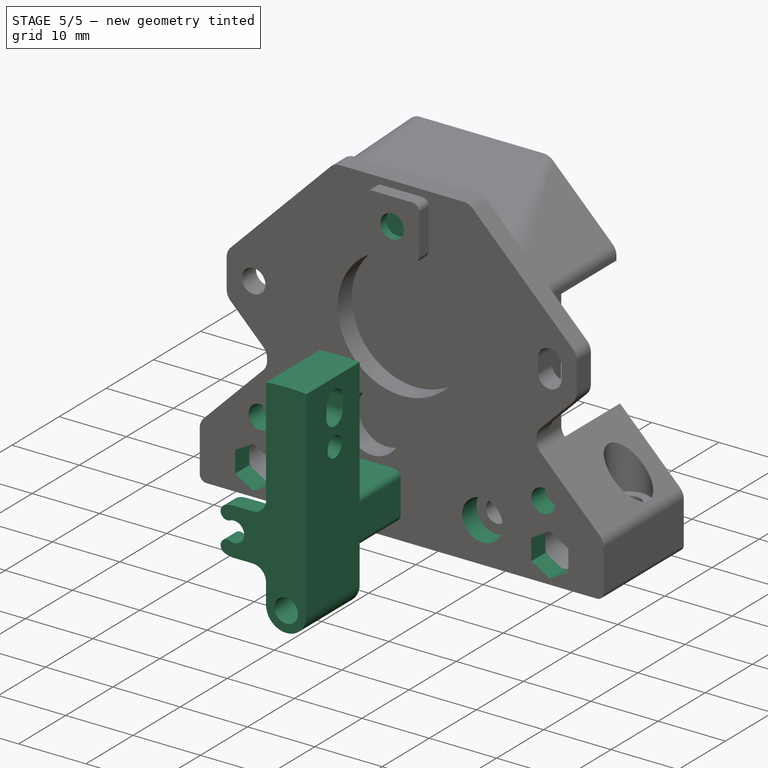
[diagram: stage 5 of 5 — iso view after this stage's code; geometry added in this stage tinted green]
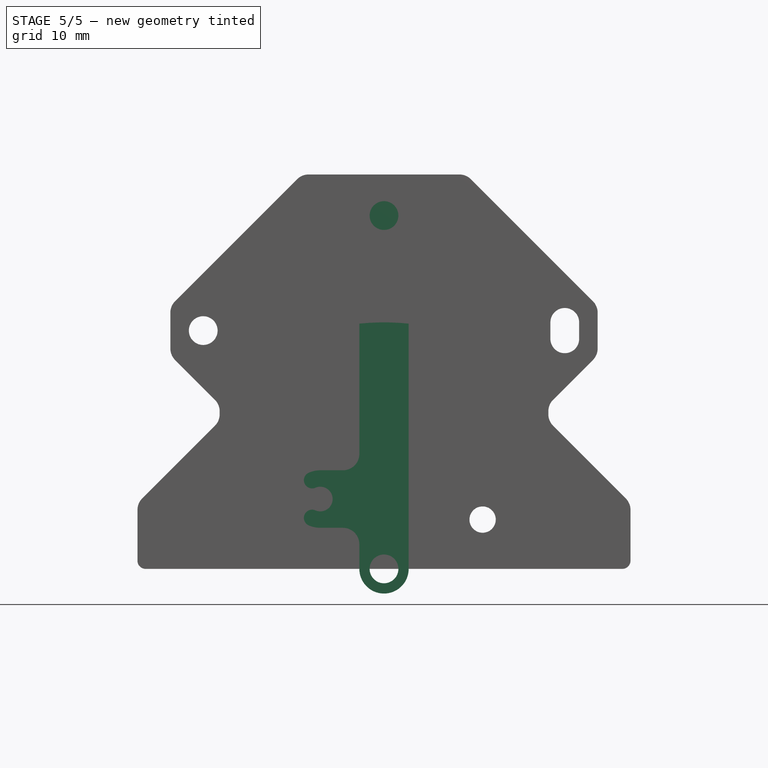
[diagram: stage 5 of 5 — front view after this stage's code; geometry added in this stage tinted green]
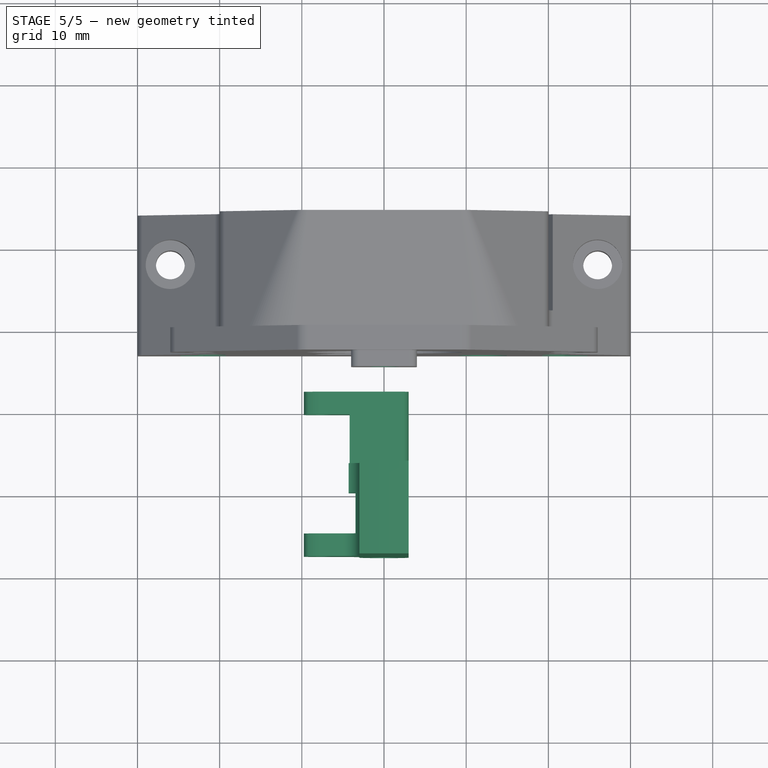
[diagram: stage 5 of 5 — top view after this stage's code; geometry added in this stage tinted green]
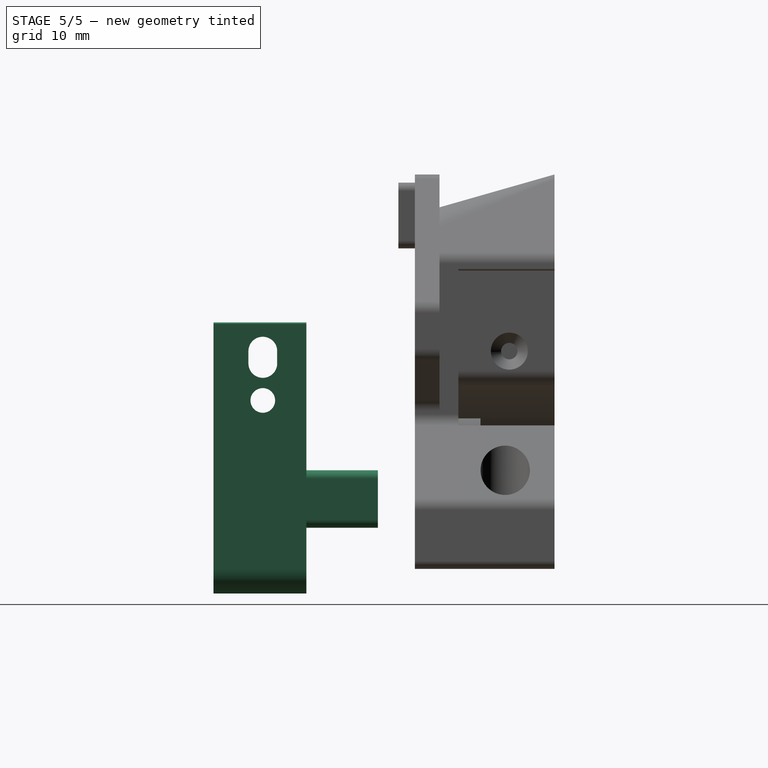
[diagram: stage 5 of 5 — right view after this stage's code; geometry added in this stage tinted green]
FEATURE [Sketcher::SketchObject] Sketch004
  ArcFitTolerance = 1e-06
  AttachmentOffset = pos=(0,0,7.5) rot=(0,0,1;0rad)
  AttachmentSupport = -> [XZ_Plane162]
  FullyConstrained = true
  MakeInternals = false
  MapMode = 5
  Placement = pos=(0,-7.5,1.7e-15) rot=(1,0,0;1.5708rad)
  expr: Constraints[19] = 4.25 - 12
  sketch-geometry (17):
    g0: LineSegment StartX=-3 StartY=-1e-15 StartZ=0 EndX=-3 EndY=3 EndZ=0
    g1: LineSegment StartX=-5 StartY=5 StartZ=0 EndX=-7.75 EndY=5 EndZ=0
    g2: ArcOfCircle CenterX=0 CenterY=0 CenterZ=0 NormalX=0 NormalY=0 NormalZ=1 AngleXU=0 Radius=3 StartAngle=3.14159 EndAngle=6.28319
    g3: LineSegment StartX=3 StartY=-7e-16 StartZ=0 EndX=3 EndY=29.8496 EndZ=0
    g4: ArcOfCircle CenterX=0 CenterY=0 CenterZ=0 NormalX=0 NormalY=0 NormalZ=1 AngleXU=0 Radius=30 StartAngle=1.47063 EndAngle=1.67096
    g5: ArcOfCircle CenterX=-7.75 CenterY=8.5 CenterZ=0 NormalX=0 NormalY=0 NormalZ=1 AngleXU=0 Radius=3.5 StartAngle=4.30087 EndAngle=4.71239
    g6: ArcOfCircle CenterX=-8.75 CenterY=6.20871 CenterZ=0 NormalX=0 NormalY=0 NormalZ=1 AngleXU=0 Radius=1 StartAngle=1.15928 EndAngle=4.30087
    g7: ArcOfCircle CenterX=-7.75 CenterY=8.5 CenterZ=0 NormalX=0 NormalY=0 NormalZ=1 AngleXU=0 Radius=1.5 StartAngle=4.30087 EndAngle=8.2655
    g8: ArcOfCircle CenterX=-8.75 CenterY=10.7913 CenterZ=0 NormalX=0 NormalY=0 NormalZ=1 AngleXU=0 Radius=1 StartAngle=1.98231 EndAngle=5.12391
    g9: ArcOfCircle CenterX=-7.75 CenterY=8.5 CenterZ=0 NormalX=0 NormalY=0 NormalZ=1 AngleXU=0 Radius=3.5 StartAngle=1.5708 EndAngle=1.98231
    g10: LineSegment StartX=-7.75 StartY=12 StartZ=0 EndX=-5 EndY=12 EndZ=0
    g11: LineSegment StartX=-3 StartY=29.8496 StartZ=0 EndX=-3 EndY=14 EndZ=0
    g12: ArcOfCircle CenterX=-5 CenterY=3 CenterZ=0 NormalX=0 NormalY=0 NormalZ=1 AngleXU=0 Radius=2 StartAngle=0 EndAngle=1.5708
    g13: GeomPoint [constr] X=-3 Y=5 Z=0
    g14: ArcOfCircle CenterX=-5 CenterY=14 CenterZ=0 NormalX=0 NormalY=0 NormalZ=1 AngleXU=0 Radius=2 StartAngle=4.71239 EndAngle=6.28319
    g15: GeomPoint [constr] X=-3 Y=12 Z=0
    g16: Circle CenterX=0 CenterY=0 CenterZ=0 NormalX=0 NormalY=0 NormalZ=1 AngleXU=0 Radius=1.75
  constraints (41):
    c: Vertical(g0)
    c: Horizontal(g1)
    c: Vertical(g3)
    c: Coincident(g4,g2)
    c: Coincident(g4,g3)
    c: Coincident(g7,g5)
    c: Coincident(g9,g5)
    c: Horizontal(g10)
    c: Coincident(g11,g4)
    c: Vertical(g11)
    c: Vertical(g15,g13)
    c: Tangent(g2,g0) = 1.5708
    c: Tangent(g3,g2) = -1.5708
    c: Tangent(g5,g1) = 1.5708
    c: Tangent(g6,g5) = -1.5708
    c: Tangent(g7,g6) = 1.5708
    c: Tangent(g8,g7) = 1.5708
    c: Tangent(g9,g8) = -1.5708
    c: Tangent(g10,g9) = 1.5708
    c: DistanceX(g5) = -7.75
    c: DistanceY(g5) = 8.5
    c: Diameter(g7) = 3
    c: Equal(g6,g8)
    c: Vertical(g6,g8)
    c: DistanceX(g6,g1) = 1
    c: Diameter(g2) = 6
    c: Diameter(g6) = 2
    c: PointOnObject(g13,g0)
    c: PointOnObject(g13,g1)
    c: Tangent(g0,g12) = -1.5708
    c: Tangent(g1,g12) = -1.5708
    c: PointOnObject(g15,g10)
    c: PointOnObject(g15,g11)
    c: Tangent(g10,g14) = -1.5708
    c: Tangent(g11,g14) = 1.5708
    c: Equal(g14,g12)
    c: Radius(g14) = 2
    c: Radius(g4) = 30
    c: Coincident(g2,g-1)
    c: Coincident(g16,g2)
    c: Diameter(g16) = 3.5
FEATURE [PartDesign::Pad] Pad001
  Direction = (0,-1,2e-16)
  Length = 20
  Length2 = 10
  Placement = pos=(0,0,0) rot=(1,0,0;1.5708rad)
  Profile = -> Sketch004
  ReferenceAxis = -> Sketch004 [N_Axis]
  Suppressed = false
  Type = 0
FEATURE [Sketcher::SketchObject] Sketch005
  ArcFitTolerance = 1e-06
  AttachmentOffset = pos=(-7.75,0,8.5) rot=(0,0,1;0rad)
  AttachmentSupport = -> [XY_Plane162]
  FullyConstrained = true
  MakeInternals = false
  MapMode = 5
  Placement = pos=(-7.75,0,8.5) rot=(0,0,1;0rad)
  sketch-geometry (6):
    g0: LineSegment StartX=0 StartY=-10.25 StartZ=0 EndX=5 EndY=-10.25 EndZ=0
    g1: LineSegment StartX=5 StartY=-10.25 StartZ=0 EndX=5 EndY=-19.75 EndZ=0
    g2: LineSegment StartX=5 StartY=-19.75 StartZ=0 EndX=6 EndY=-19.75 EndZ=0
    g3: LineSegment StartX=6 StartY=-19.75 StartZ=0 EndX=6 EndY=-24.75 EndZ=0
    g4: LineSegment StartX=6 StartY=-24.75 StartZ=0 EndX=0 EndY=-24.75 EndZ=0
    g5: LineSegment StartX=0 StartY=-24.75 StartZ=0 EndX=0 EndY=-10.25 EndZ=0
  constraints (18):
    c: PointOnObject(g0,g-2)
    c: Horizontal(g0)
    c: Coincident(g0,g1)
    c: Vertical(g1)
    c: Coincident(g1,g2)
    c: Horizontal(g2)
    c: Coincident(g2,g3)
    c: Vertical(g3)
    c: Coincident(g3,g4)
    c: PointOnObject(g4,g-2)
    c: Horizontal(g4)
    c: Coincident(g4,g5)
    c: Coincident(g5,g0)
    c: DistanceY(g0) = -10.25
    c: DistanceY(g4) = -24.75
    c: DistanceY(g2) = -19.75
    c: DistanceX(g4,g4) = 6
    c: DistanceX(g0,g0) = 5
FEATURE [PartDesign::Groove] Groove
  Angle = 360
  Angle2 = 60
  Axis = (0,1,0)
  Base = (-7.75,0,8.5)
  BaseFeature = -> Pad001
  Placement = pos=(0,0,0) rot=(1,0,0;1.5708rad)
  Profile = -> Sketch005
  ReferenceAxis = -> Sketch005 [V_Axis]
  Suppressed = false
  Type = 0
FEATURE [Sketcher::SketchObject] Sketch006
  ArcFitTolerance = 1e-06
  AttachmentSupport = -> [YZ_Plane162]
  FullyConstrained = true
  MakeInternals = false
  MapMode = 5
  Placement = pos=(0,0,0) rot=(0.57735,0.57735,0.57735;2.0944rad)
  sketch-geometry (9):
    g0: LineSegment StartX=-16.2 StartY=36 StartZ=0 EndX=0 EndY=36 EndZ=0
    g1: LineSegment StartX=-16.2 StartY=-6 StartZ=0 EndX=-16.2 EndY=5 EndZ=0
    g2: LineSegment StartX=-16.2 StartY=5 StartZ=0 EndX=-7.5 EndY=5 EndZ=0
    g3: LineSegment StartX=-7.5 StartY=5 StartZ=0 EndX=-7.5 EndY=12 EndZ=0
    g4: LineSegment StartX=-7.5 StartY=12 StartZ=0 EndX=-16.2 EndY=12 EndZ=0
    g5: LineSegment StartX=-16.2 StartY=12 StartZ=0 EndX=-16.2 EndY=36 EndZ=0
    g6: GeomPoint X=-16.2 Y=8.5 Z=0
    g7: LineSegment StartX=0 StartY=36 StartZ=0 EndX=0 EndY=-6 EndZ=0
    g8: LineSegment StartX=0 StartY=-6 StartZ=0 EndX=-16.2 EndY=-6 EndZ=0
  constraints (25):
    c: PointOnObject(g0,g-2)
    c: Horizontal(g0)
    c: Vertical(g1)
    c: Coincident(g1,g2)
    c: Horizontal(g2)
    c: Coincident(g2,g3)
    c: Vertical(g3)
    c: Coincident(g3,g4)
    c: Horizontal(g4)
    c: Coincident(g4,g5)
    c: Vertical(g5)
    c: Coincident(g0,g5)
    c: Vertical(g1,g4)
    c: DistanceX(g2) = -7.5
    c: Symmetric(g1,g4,g6)
    c: DistanceY(g1,g4) = 7
    c: DistanceY(g6) = 8.5
    c: DistanceY(g0) = 36
    c: DistanceX(g1) = -16.2
    c: Coincident(g0,g7)
    c: PointOnObject(g7,g-2)
    c: Coincident(g7,g8)
    c: Coincident(g8,g1)
    c: Horizontal(g8)
    c: DistanceY(g7,g-1) = 6
FEATURE [PartDesign::Pocket] Pocket001
  BaseFeature = -> Groove
  Direction = (-1,0,0)
  Length = 5
  Length2 = 5
  Midplane = true
  Placement = pos=(0,0,0) rot=(1,0,0;1.5708rad)
  Profile = -> Sketch006
  ReferenceAxis = -> Sketch006 [N_Axis]
  Suppressed = false
  Type = 1
FEATURE [Sketcher::SketchObject] Sketch007
  ArcFitTolerance = 1e-06
  AttachmentOffset = pos=(0,0,7) rot=(0,0,1;0rad)
  AttachmentSupport = -> [XZ_Plane163]
  FullyConstrained = true
  MakeInternals = false
  MapMode = 5
  Placement = pos=(0,-7,1.6e-15) rot=(1,0,0;1.5708rad)
  sketch-geometry (17):
    g0: ArcOfCircle CenterX=12 CenterY=6 CenterZ=0 NormalX=0 NormalY=0 NormalZ=1 AngleXU=0 Radius=16.0027 StartAngle=1.96101 EndAngle=2.31007
    g1: ArcOfCircle CenterX=7.62455 CenterY=16.638 CenterZ=0 NormalX=0 NormalY=0 NormalZ=1 AngleXU=0 Radius=4.5 StartAngle=1.22174 EndAngle=1.96101
    g2: Circle [constr] CenterX=4.25 CenterY=14.5 CenterZ=0 NormalX=0 NormalY=0 NormalZ=1 AngleXU=0 Radius=4.5
    g3: Circle [constr] CenterX=7.62455 CenterY=16.638 CenterZ=0 NormalX=0 NormalY=0 NormalZ=1 AngleXU=0 Radius=4.5
    g4: LineSegment [constr] StartX=9.16364 StartY=20.8667 StartZ=0 EndX=19.5003 EndY=17.1044 EndZ=0
    g5: LineSegment [constr] StartX=9.16362 StartY=20.8667 StartZ=0 EndX=19.5003 EndY=17.1044 EndZ=0
    g6: LineSegment StartX=19.0798 StartY=15.9493 StartZ=0 EndX=16.9351 EndY=10.0567 EndZ=0
    g7: ArcOfCircle CenterX=4.25 CenterY=14.5 CenterZ=0 NormalX=0 NormalY=0 NormalZ=1 AngleXU=0 Radius=4.5 StartAngle=2.31007 EndAngle=4.71239
    g8: LineSegment StartX=4.25 StartY=10 StartZ=0 EndX=12 EndY=10 EndZ=0
    g9: LineSegment [constr] StartX=6.08546 StartY=12.4094 StartZ=0 EndX=16.4221 EndY=8.64721 EndZ=0
    g10: ArcOfCircle CenterX=12 CenterY=6 CenterZ=0 NormalX=0 NormalY=0 NormalZ=1 AngleXU=0 Radius=4 StartAngle=1.22173 EndAngle=1.5708
    g11: LineSegment StartX=13.3681 StartY=9.75877 StartZ=0 EndX=15.0125 EndY=9.16024 EndZ=0
    g12: LineSegment StartX=13.3923 StartY=19.3276 StartZ=0 EndX=9.16362 EndY=20.8667 EndZ=0
    g13: ArcOfCircle CenterX=12 CenterY=6 CenterZ=0 NormalX=0 NormalY=0 NormalZ=1 AngleXU=0 Radius=13.4001 StartAngle=1.07414 EndAngle=1.46671
    g14: ArcOfCircle CenterX=17.6703 CenterY=16.4623 CenterZ=0 NormalX=0 NormalY=0 NormalZ=1 AngleXU=0 Radius=1.5 StartAngle=5.93412 EndAngle=7.35732
    g15: ArcOfCircle CenterX=15.5256 CenterY=10.5698 CenterZ=0 NormalX=0 NormalY=0 NormalZ=1 AngleXU=0 Radius=1.5 StartAngle=4.36332 EndAngle=5.93412
    g16: GeomPoint [constr] X=16.4221 Y=8.64721 Z=0
  constraints (43):
    c: Angle(g0) = 0.349066
    c: Tangent(g1,g0) = -1.5708
    c: Tangent(g0,g2) = -1.5708
    c: DistanceX(g2) = 4.25
    c: DistanceY(g2) = 14.5
    c: Equal(g1,g2)
    c: DistanceX(g0) = 12
    c: DistanceY(g0) = 6
    c: Coincident(g3,g1)
    c: Diameter(g3) = 9
    c: Tangent(g4,g3) = 1.5708
    c: Distance(g4) = 11
    c: PointOnObject(g1,g4)
    c: Coincident(g5,g1)
    c: Coincident(g5,g4)
    c: Coincident(g7,g2)
    c: Coincident(g7,g0)
    c: Horizontal(g8)
    c: Tangent(g8,g7) = -1.5708
    c: Perpendicular(g5,g6)
    c: Tangent(g9,g3) = -1.5708
    c: Coincident(g9,g16)
    c: Parallel(g9,g5)
    c: Vertical(g8,g0)
    c: Coincident(g10,g0)
    c: PointOnObject(g10,g9)
    c: Coincident(g10,g8)
    c: Equal(g2,g3)
    c: Coincident(g12,g1)
    c: PointOnObject(g12,g4)
    c: Coincident(g13,g0)
    c: Coincident(g13,g12)
    c: Tangent(g13,g14) = -1.5708
    c: Tangent(g6,g14) = 1.5708
    c: PointOnObject(g4,g13)
    c: PointOnObject(g4,g6)
    c: Radius(g14) = 1.5
    c: PointOnObject(g16,g6)
    c: PointOnObject(g16,g11)
    c: Tangent(g6,g15) = 1.5708
    c: Tangent(g11,g15) = -1.5708
    c: Equal(g15,g14)
    c: Tangent(g11,g10) = 1.5708
FEATURE [Sketcher::SketchObject] Sketch008
  ArcFitTolerance = 1e-06
  AttachmentSupport = -> [YZ_Plane162]
  FullyConstrained = true
  MakeInternals = false
  MapMode = 5
  Placement = pos=(0,0,0) rot=(0.57735,0.57735,0.57735;2.0944rad)
  sketch-geometry (5):
    g0: ArcOfCircle CenterX=-21.5 CenterY=26.5 CenterZ=0 NormalX=0 NormalY=0 NormalZ=1 AngleXU=0 Radius=1.75 StartAngle=1.48e-14 EndAngle=3.14159
    g1: ArcOfCircle CenterX=-21.5 CenterY=25 CenterZ=0 NormalX=0 NormalY=0 NormalZ=1 AngleXU=0 Radius=1.75 StartAngle=3.14159 EndAngle=6.28319
    g2: LineSegment StartX=-19.75 StartY=26.5 StartZ=0 EndX=-19.75 EndY=25 EndZ=0
    g3: LineSegment StartX=-23.25 StartY=26.5 StartZ=0 EndX=-23.25 EndY=25 EndZ=0
    g4: Circle CenterX=-21.5 CenterY=20.5 CenterZ=0 NormalX=0 NormalY=0 NormalZ=1 AngleXU=0 Radius=1.5
  constraints (13):
    c: Tangent(g0,g2) = 1.5708
    c: Tangent(g0,g3) = -1.5708
    c: Tangent(g1,g2) = 1.5708
    c: Tangent(g1,g3) = -1.5708
    c: Equal(g0,g1)
    c: Vertical(g2)
    c: Diameter(g0) = 3.5
    c: DistanceY(g2,g2) = 1.5
    c: DistanceY(g1) = 25
    c: DistanceX(g1) = -21.5
    c: Diameter(g4) = 3
    c: Vertical(g4,g1)
    c: DistanceY(g4) = 20.5
FEATURE [PartDesign::Pocket] Pocket003
  BaseFeature = -> Pocket001
  Direction = (-1,0,0)
  Length = 5
  Length2 = 5
  Midplane = true
  Placement = pos=(0,0,0) rot=(1,0,0;1.5708rad)
  Profile = -> Sketch008
  ReferenceAxis = -> Sketch008 [N_Axis]
  Suppressed = false
  Type = 1
FEATURE [PartDesign::Fillet] Fillet
  Base = -> Pocket003 [Edge14,Edge11]
  BaseFeature = -> Pocket003
  Placement = pos=(0,0,0) rot=(1,0,0;1.5708rad)
  Radius = 1
  SupportTransform = false
  Suppressed = false
  UseAllEdges = false
FEATURE [Sketcher::SketchObject] Sketch025
  ArcFitTolerance = 1e-06
  AttachmentSupport = -> [XZ_Plane]
  FullyConstrained = true
  MakeInternals = false
  MapMode = 5
  Placement = pos=(0,0,0) rot=(1,0,0;1.5708rad)
  sketch-geometry (1):
    g0: Circle CenterX=0 CenterY=43 CenterZ=0 NormalX=0 NormalY=0 NormalZ=1 AngleXU=0 Radius=3
  constraints (3):
    c: PointOnObject(g0,g-2)
    c: Diameter(g0) = 6
    c: DistanceY(g0) = 43
FEATURE [PartDesign::Pocket] Pocket013
  BaseFeature = -> Pad004
  Direction = (0,1,-2e-16)
  Length = 3.5
  Length2 = 5
  Placement = pos=(0,0,0) rot=(1,0,0;1.5708rad)
  Profile = -> Sketch025
  ReferenceAxis = -> Sketch025 [N_Axis]
  Reversed = true
  Suppressed = false
  Type = 0
FEATURE [Sketcher::SketchObject] Sketch026
  ArcFitTolerance = 1e-06
  AttachmentOffset = pos=(0,0,3.8) rot=(0,0,1;0rad)
  AttachmentSupport = -> [XZ_Plane]
  FullyConstrained = true
  MakeInternals = false
  MapMode = 5
  Placement = pos=(0,-3.8,8e-16) rot=(1,0,0;1.5708rad)
  sketch-geometry (1):
    g0: Circle CenterX=0 CenterY=43 CenterZ=0 NormalX=0 NormalY=0 NormalZ=1 AngleXU=0 Radius=1.75
  constraints (3):
    c: PointOnObject(g0,g-2)
    c: DistanceY(g0) = 43
    c: Diameter(g0) = 3.5
FEATURE [PartDesign::Pocket] Pocket014
  BaseFeature = -> Pocket013
  Direction = (0,1,-2e-16)
  Length = 5
  Length2 = 5
  Placement = pos=(0,0,0) rot=(1,0,0;1.5708rad)
  Profile = -> Sketch026
  ReferenceAxis = -> Sketch026 [N_Axis]
  Reversed = true
  Suppressed = false
  Type = 1
FEATURE [Sketcher::SketchObject] Sketch027
  ArcFitTolerance = 1e-06
  AttachmentSupport = -> [XZ_Plane]
  FullyConstrained = true
  MakeInternals = false
  MapMode = 5
  Placement = pos=(0,0,0) rot=(1,0,0;1.5708rad)
  sketch-geometry (1):
    g0: Circle CenterX=12 CenterY=6 CenterZ=0 NormalX=0 NormalY=0 NormalZ=1 AngleXU=0 Radius=3
  constraints (3):
    c: DistanceX(g0) = 12
    c: DistanceY(g0) = 6
    c: Diameter(g0) = 6
FEATURE [PartDesign::Pocket] Pocket015
  BaseFeature = -> Pocket014
  Direction = (0,1,-2e-16)
  Length = 5
  Length2 = 5
  Midplane = true
  Placement = pos=(0,0,0) rot=(1,0,0;1.5708rad)
  Profile = -> Sketch027
  ReferenceAxis = -> Sketch027 [N_Axis]
  Suppressed = false
  Type = 1
FEATURE [Sketcher::SketchObject] Sketch031
  ArcFitTolerance = 1e-06
  AttachmentOffset = pos=(0,0,12) rot=(0,0,1;0rad)
  AttachmentSupport = -> [XZ_Plane163]
  FullyConstrained = true
  MakeInternals = false
  MapMode = 5
  Placement = pos=(0,-12,2.7e-15) rot=(1,0,0;1.5708rad)
  sketch-geometry (14):
    g0: LineSegment StartX=-21 StartY=7.82457 StartZ=0 EndX=-18.25 EndY=9.41229 EndZ=0
    g1: LineSegment StartX=-18.25 StartY=9.41229 StartZ=0 EndX=-18.25 EndY=12.5877 EndZ=0
    g2: LineSegment StartX=-18.25 StartY=12.5877 StartZ=0 EndX=-21 EndY=14.1754 EndZ=0
    g3: LineSegment StartX=-21 StartY=14.1754 StartZ=0 EndX=-23.75 EndY=12.5877 EndZ=0
    g4: LineSegment StartX=-23.75 StartY=12.5877 StartZ=0 EndX=-23.75 EndY=9.41229 EndZ=0
    g5: LineSegment StartX=-23.75 StartY=9.41229 StartZ=0 EndX=-21 EndY=7.82457 EndZ=0
    g6: Circle [constr] CenterX=-21 CenterY=11 CenterZ=0 NormalX=0 NormalY=0 NormalZ=1 AngleXU=0 Radius=3.17543
    g7: LineSegment StartX=23.75 StartY=9.41229 StartZ=0 EndX=23.75 EndY=12.5877 EndZ=0
    g8: LineSegment StartX=23.75 StartY=12.5877 StartZ=0 EndX=21 EndY=14.1754 EndZ=0
    g9: LineSegment StartX=21 StartY=14.1754 StartZ=0 EndX=18.25 EndY=12.5877 EndZ=0
    g10: LineSegment StartX=18.25 StartY=12.5877 StartZ=0 EndX=18.25 EndY=9.41229 EndZ=0
    g11: LineSegment StartX=18.25 StartY=9.41229 StartZ=0 EndX=21 EndY=7.82457 EndZ=0
    g12: LineSegment StartX=21 StartY=7.82457 StartZ=0 EndX=23.75 EndY=9.41229 EndZ=0
    g13: Circle [constr] CenterX=21 CenterY=11 CenterZ=0 NormalX=0 NormalY=0 NormalZ=1 AngleXU=0 Radius=3.17543
  constraints (33):
    c: Coincident(g0,g1)
    c: Coincident(g1,g2)
    c: Coincident(g2,g3)
    c: Coincident(g3,g4)
    c: Coincident(g4,g5)
    c: Coincident(g5,g0)
    c: Equal(g0, g1-g5) x5
    c: PointOnObject(g0,g6)
    c: PointOnObject(g1,g6)
    c: PointOnObject(g2,g6)
    c: PointOnObject(g3,g6)
    c: PointOnObject(g4,g6)
    c: PointOnObject(g5,g6)
    c: Coincident(g7,g8)
    c: Coincident(g8,g9)
    c: Coincident(g9,g10)
    c: Coincident(g10,g11)
    c: Coincident(g11,g12)
    c: Coincident(g12,g7)
    c: Equal(g7, g8-g12) x5
    c: PointOnObject(g7,g13)
    c: PointOnObject(g8,g13)
    c: PointOnObject(g9,g13)
    c: PointOnObject(g10,g13)
    c: PointOnObject(g11,g13)
    c: PointOnObject(g12,g13)
    c: DistanceX(g13) = 21
    c: DistanceY(g13) = 11
    c: Symmetric(g6,g13,g-2)
    c: Equal(g6,g13)
    c: Distance(g7,g8) = 5.5
    c: Vertical(g7)
    c: Vertical(g1)
FEATURE [Sketcher::SketchObject] Sketch033
  ArcFitTolerance = 1e-06
  AttachmentSupport = -> [XZ_Plane]
  FullyConstrained = true
  MakeInternals = false
  MapMode = 5
  Placement = pos=(0,0,0) rot=(1,0,0;1.5708rad)
  sketch-geometry (2):
    g0: Circle CenterX=-21 CenterY=11 CenterZ=0 NormalX=0 NormalY=0 NormalZ=1 AngleXU=0 Radius=1.75
    g1: Circle CenterX=21 CenterY=11 CenterZ=0 NormalX=0 NormalY=0 NormalZ=1 AngleXU=0 Radius=1.75
  constraints (5):
    c: Equal(g0,g1)
    c: Diameter(g1) = 3.5
    c: Symmetric(g1,g0,g-2)
    c: DistanceX(g1) = 21
    c: DistanceY(g1) = 11
FEATURE [PartDesign::Pocket] Pocket022
  BaseFeature = -> Pocket015
  Direction = (0,1,-2e-16)
  Length = 5
  Length2 = 5
  Midplane = true
  Placement = pos=(0,0,0) rot=(1,0,0;1.5708rad)
  Profile = -> Sketch033
  ReferenceAxis = -> Sketch033 [N_Axis]
  Suppressed = false
  Type = 1
FEATURE [PartDesign::SubShapeBinder] Binder001
  BindCopyOnChange = 0
  BindMode = 0
  ClaimChildren = false
  Context = -> <external assembly.FCStd>#Part [Part002.Part003.Link.Link001.Body.Binder001.]
  Fuse = false
  MakeFace = true
  OffsetFill = false
  OffsetIntersection = false
  OffsetJoinType = 0
  OffsetOpenResult = false
  PartialLoad = false
  Relative = true
  Support = -> [Body003[Sketch036.]]
  _Version = 2
FEATURE [PartDesign::Pocket] Pocket025
  BaseFeature = -> Pocket022
  Direction = (0,-1,0)
  Length = 5
  Length2 = 5
  Placement = pos=(0,0,0) rot=(1,0,0;1.5708rad)
  Profile = -> Binder001
  Reversed = true
  Suppressed = false
  Type = 1
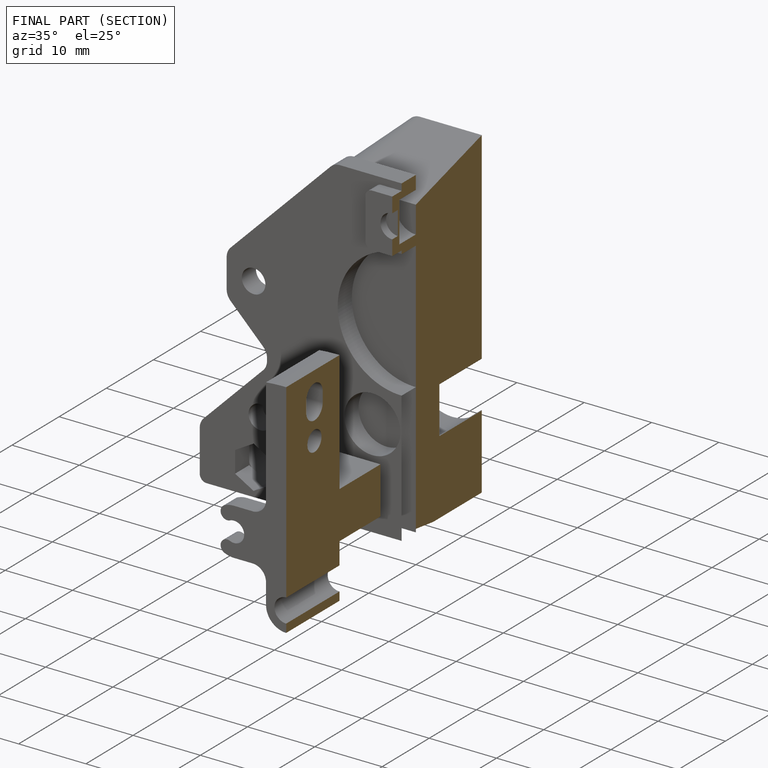
[diagram: finished part — half-section view (interior)]
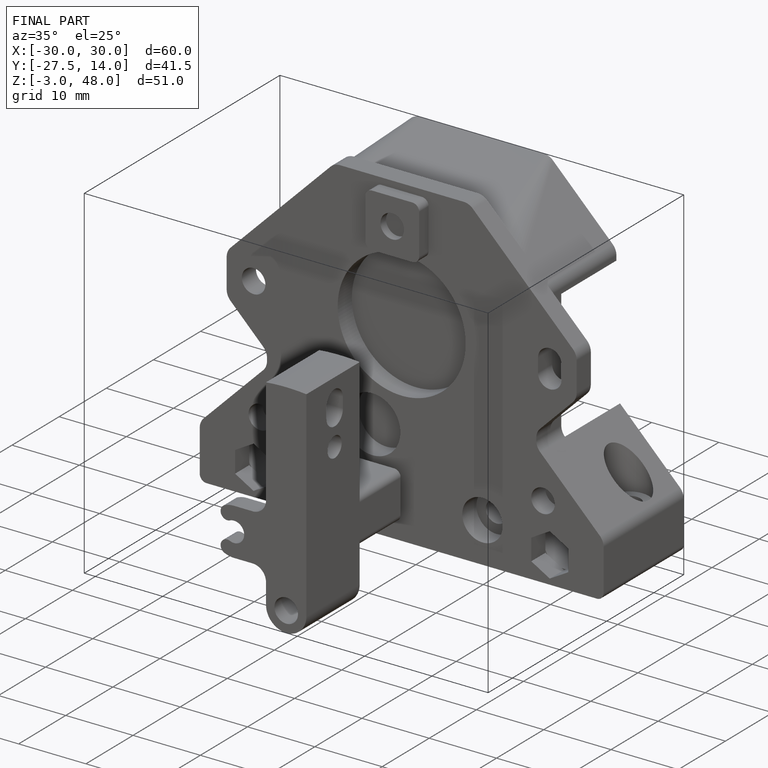
[diagram: finished part — iso view with bounding-box wireframe]
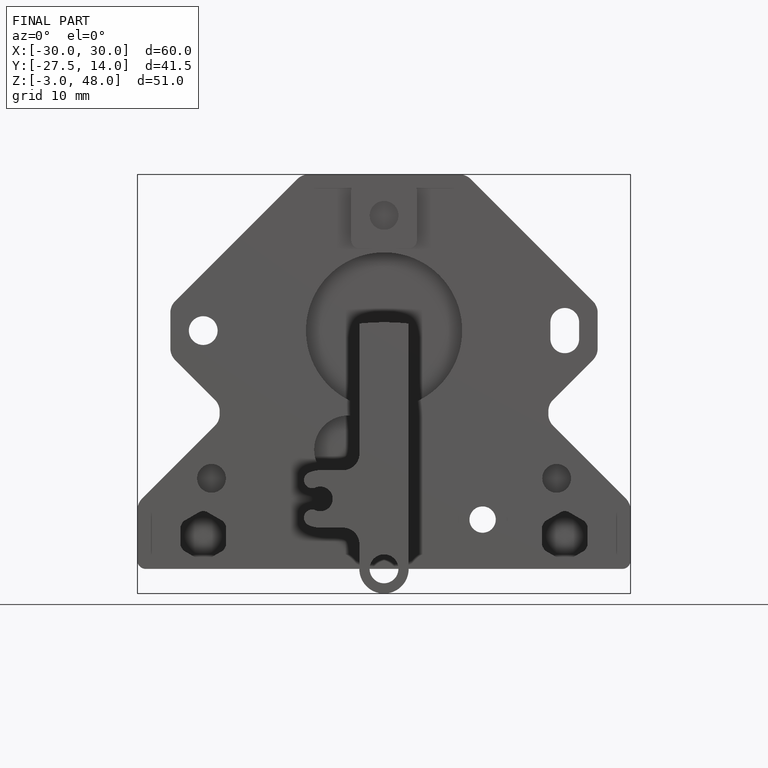
[diagram: finished part — front view with bounding-box wireframe]
